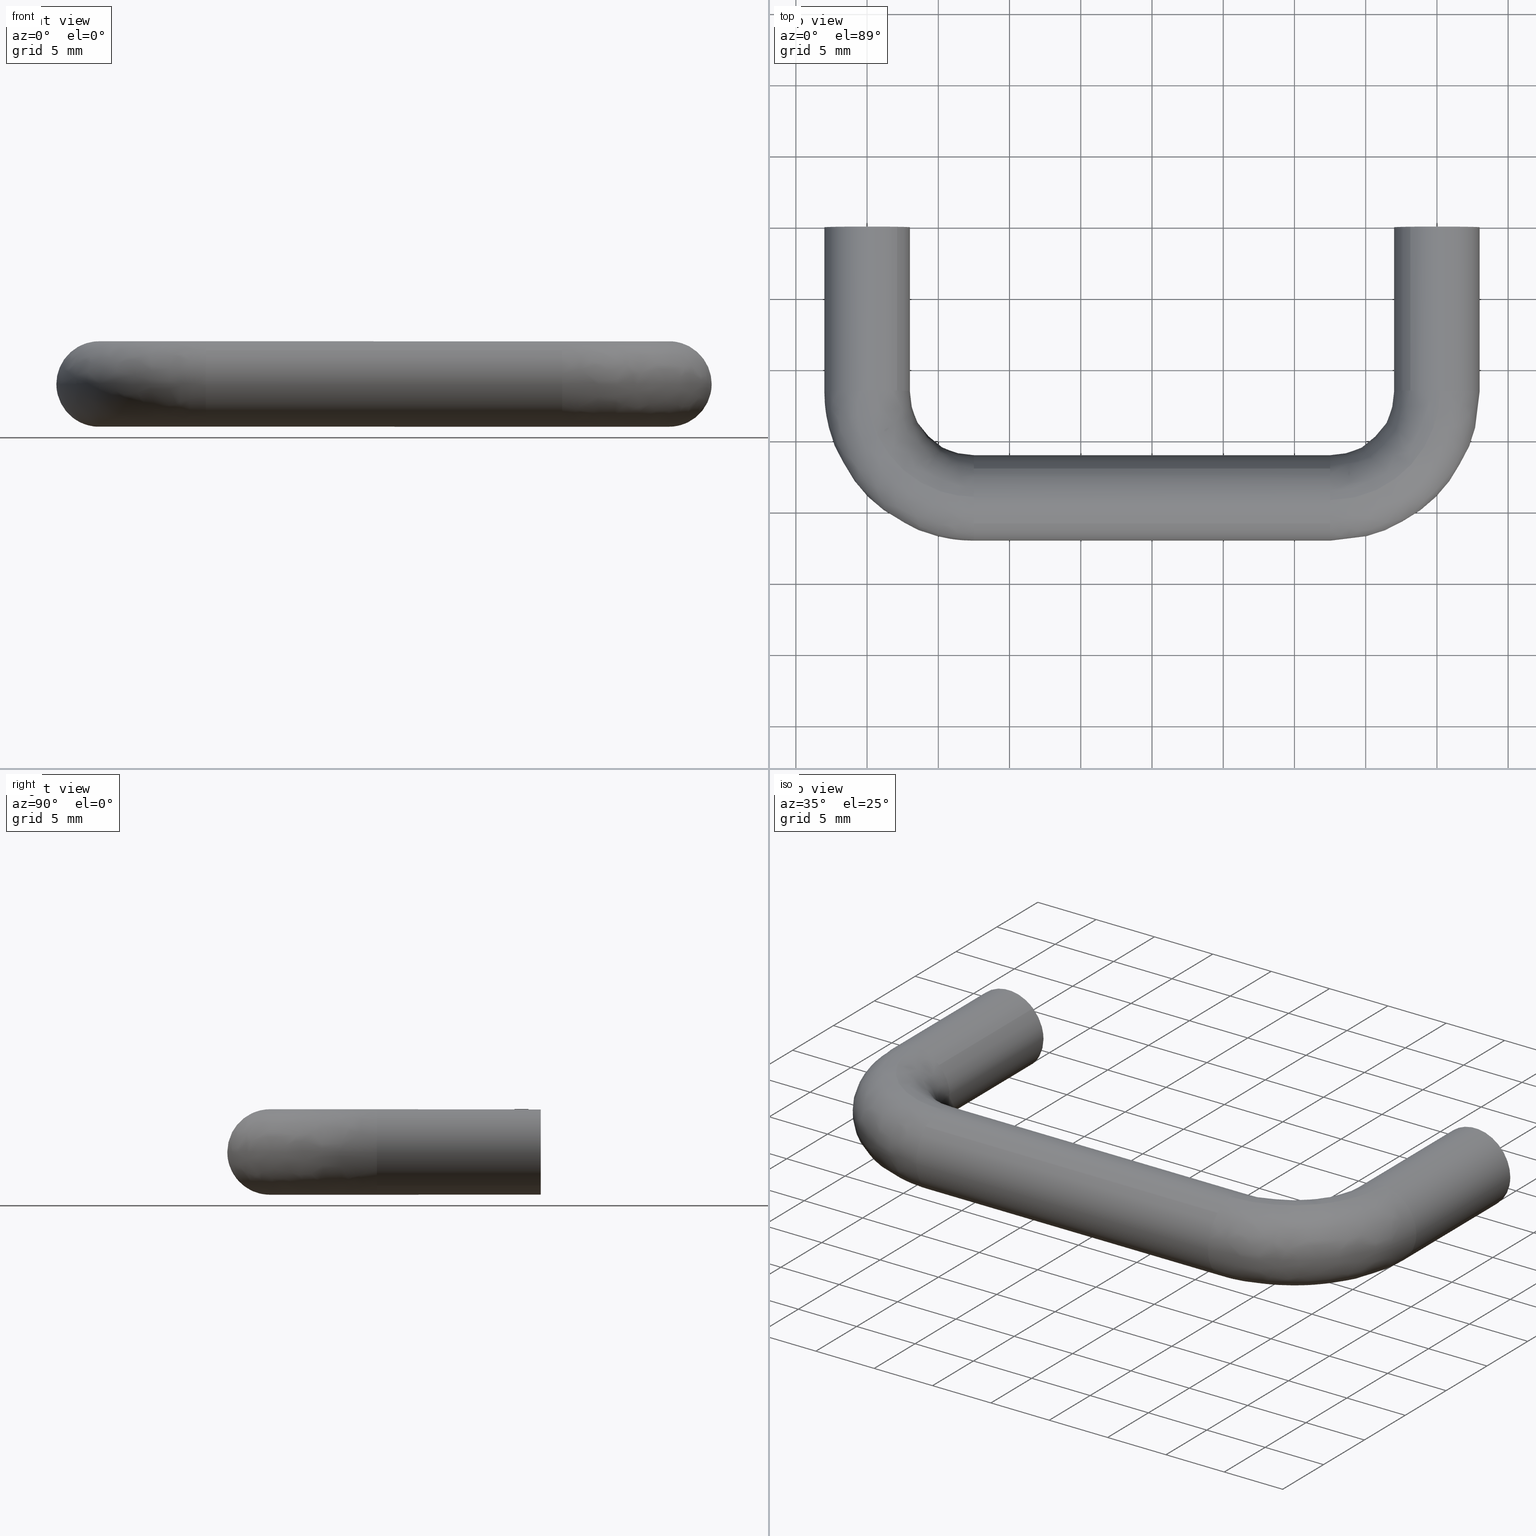
[diagram: canonical four-view strip — front | top / right | iso, engineering-drawing reading convention]
A machine part, canonical four-view strip (front | top / right | iso — engineering-drawing reading convention). The complete STEP part file that produces these views, byte-faithful:
ISO-10303-21;
HEADER;
/****************************************************************
 * Generated by software with PDE/Lib inside                    *
 * PDElib Version 4.4.1-0003, patched  Thursday August 19 11:58 *
 * International Technegroup Inc. (www.iti-oh.com)              *
 ****************************************************************/
FILE_DESCRIPTION((''),'2;1');
FILE_NAME('','2005-10-07T12:40:44',(''),(''),'','CADfix','');
FILE_SCHEMA(('AUTOMOTIVE_DESIGN'));
ENDSEC;
DATA;
#5=APPLICATION_CONTEXT('automotive design');
#6=APPLICATION_PROTOCOL_DEFINITION('Draft International Standard','automotive_design',1998,#5);
#7=PRODUCT_CONTEXT('None',#5,'mechanical');
#8=PRODUCT('pull','','None',(#7));
#9=PRODUCT_RELATED_PRODUCT_CATEGORY('part','description',(#8));
#10=PRODUCT_DEFINITION_FORMATION('None','None',#8);
#11=PRODUCT_DEFINITION_CONTEXT('part definition',#5,'design');
#12=PRODUCT_DEFINITION('None','None',#10,#11);
#18=(NAMED_UNIT(*)PLANE_ANGLE_UNIT()SI_UNIT($,.RADIAN.));
#19=DIMENSIONAL_EXPONENTS(0.0,0.0,0.0,0.0,0.0,0.0,0.0);
#20=PLANE_ANGLE_MEASURE_WITH_UNIT(PLANE_ANGLE_MEASURE(0.017453292500000),#18);
#24=(CONVERSION_BASED_UNIT('DEGREE',#20)NAMED_UNIT(#19)PLANE_ANGLE_UNIT());
#28=(NAMED_UNIT(*)SI_UNIT($,.STERADIAN.)SOLID_ANGLE_UNIT());
#32=(LENGTH_UNIT()NAMED_UNIT(*)SI_UNIT(.MILLI.,.METRE.));
#34=UNCERTAINTY_MEASURE_WITH_UNIT(LENGTH_MEASURE(0.001000000000000),#32,'DISTANCE_ACCURACY_VALUE','');
#36=(GEOMETRIC_REPRESENTATION_CONTEXT(3)GLOBAL_UNCERTAINTY_ASSIGNED_CONTEXT((#34))GLOBAL_UNIT_ASSIGNED_CONTEXT((#24,#28,#32))REPRESENTATION_CONTEXT('None','None'));
#37=AXIS2_PLACEMENT_3D('',#38,#39,#40);
#38=CARTESIAN_POINT('',(0.0,0.0,0.0));
#39=DIRECTION('',(0.0,0.0,1.0));
#40=DIRECTION('',(1.0,0.0,0.0));
#41=ADVANCED_BREP_SHAPE_REPRESENTATION('',(#37,#1347),#36);
#42=PRODUCT_DEFINITION_SHAPE('','',#12);
#43=SHAPE_DEFINITION_REPRESENTATION(#42,#41);
#44=CARTESIAN_POINT('',(38.006165332533747,-8.199999999999999,0.156918191455691));
#45=CARTESIAN_POINT('',(38.163083523989442,-8.199999999999999,2.150752858921946));
#46=CARTESIAN_POINT('',(40.156918191455688,-8.199999999999999,1.993834667466255));
#47=CARTESIAN_POINT('',(42.150752858921940,-8.199999999999999,1.836916476010564));
#48=CARTESIAN_POINT('',(41.993834667466253,-8.199999999999999,-0.156918191455691));
#49=CARTESIAN_POINT('',(38.006165332533747,0.205000000000000,0.156918191455691));
#50=CARTESIAN_POINT('',(38.163083523989442,0.205000000000000,2.150752858921946));
#51=CARTESIAN_POINT('',(40.156918191455688,0.205000000000000,1.993834667466255));
#52=CARTESIAN_POINT('',(42.150752858921940,0.205000000000000,1.836916476010564));
#53=CARTESIAN_POINT('',(41.993834667466253,0.205000000000000,-0.156918191455691));
#61=(BOUNDED_SURFACE()B_SPLINE_SURFACE(2,1,((#44,#49),(#45,#50),(#46,#51),(#47,#52),(#48,#53)),.UNSPECIFIED.,.F.,.F.,.U.)B_SPLINE_SURFACE_WITH_KNOTS((3,2,3),(2,2),(0.0,3.313708498984760,6.627416997969521),(0.0,8.404999999999999),.UNSPECIFIED.)GEOMETRIC_REPRESENTATION_ITEM()RATIONAL_B_SPLINE_SURFACE(((1.0,1.0),(0.707106781186548,0.707106781186548),(1.0,1.0),(0.707106781186548,0.707106781186548),(1.0,1.0)))REPRESENTATION_ITEM('')SURFACE());
#62=CARTESIAN_POINT('',(40.0,-8.0,2.0));
#63=VERTEX_POINT('',#62);
#64=CARTESIAN_POINT('',(38.006165332542729,-8.0,0.156918191569840));
#65=VERTEX_POINT('',#64);
#66=CARTESIAN_POINT('',(40.0,-8.0,2.0));
#67=CARTESIAN_POINT('',(38.151219016895936,-8.0,2.0));
#68=CARTESIAN_POINT('',(38.006165332542729,-8.0,0.156918191569840));
#76=(BOUNDED_CURVE()B_SPLINE_CURVE(2,(#66,#67,#68),.UNSPECIFIED.,.F.,.U.)B_SPLINE_CURVE_WITH_KNOTS((3,3),(0.0,0.236331300613138),.UNSPECIFIED.)CURVE()GEOMETRIC_REPRESENTATION_ITEM()RATIONAL_B_SPLINE_CURVE((1.0,0.723120658628193,0.969723356130852))REPRESENTATION_ITEM(''));
#77=EDGE_CURVE('',#63,#65,#76,.T.);
#78=ORIENTED_EDGE('',*,*,#77,.T.);
#79=CARTESIAN_POINT('',(38.006165332542729,-4.163336E-017,0.156918191569840));
#80=VERTEX_POINT('',#79);
#81=CARTESIAN_POINT('',(38.006165332542729,-8.0,0.156918191569840));
#82=CARTESIAN_POINT('',(38.006165332542729,-4.163336E-017,0.156918191569840));
#83=QUASI_UNIFORM_CURVE('',1,(#81,#82),.UNSPECIFIED.,.F.,.U.);
#84=EDGE_CURVE('',#65,#80,#83,.T.);
#85=ORIENTED_EDGE('',*,*,#84,.T.);
#86=CARTESIAN_POINT('',(40.0,0.0,2.0));
#87=VERTEX_POINT('',#86);
#88=CARTESIAN_POINT('',(40.0,0.0,2.0));
#89=CARTESIAN_POINT('',(38.151219016895929,0.0,2.000000000000000));
#90=CARTESIAN_POINT('',(38.006165332542729,-4.163336E-017,0.156918191569841));
#98=(BOUNDED_CURVE()B_SPLINE_CURVE(2,(#88,#89,#90),.UNSPECIFIED.,.F.,.U.)B_SPLINE_CURVE_WITH_KNOTS((3,3),(0.0,0.236331300613138),.UNSPECIFIED.)CURVE()GEOMETRIC_REPRESENTATION_ITEM()RATIONAL_B_SPLINE_CURVE((1.0,0.723120658628193,0.969723356130852))REPRESENTATION_ITEM(''));
#99=EDGE_CURVE('',#87,#80,#98,.T.);
#100=ORIENTED_EDGE('',*,*,#99,.F.);
#101=CARTESIAN_POINT('',(41.993834667457271,-4.163336E-017,-0.156918191569840));
#102=VERTEX_POINT('',#101);
#103=CARTESIAN_POINT('',(41.993834667457278,-4.163336E-017,-0.156918191569840));
#104=CARTESIAN_POINT('',(42.0,0.0,-0.078580214130019));
#105=CARTESIAN_POINT('',(42.0,0.0,0.0));
#106=CARTESIAN_POINT('',(42.000000000000007,0.0,2.000000000000000));
#107=CARTESIAN_POINT('',(40.0,0.0,2.0));
#115=(BOUNDED_CURVE()B_SPLINE_CURVE(2,(#103,#104,#105,#106,#107),.UNSPECIFIED.,.F.,.U.)B_SPLINE_CURVE_WITH_KNOTS((3,2,3),(0.736331300613138,0.750000000000000,1.0),.UNSPECIFIED.)CURVE()GEOMETRIC_REPRESENTATION_ITEM()RATIONAL_B_SPLINE_CURVE((0.969723356130852,0.983986122558354,1.0,0.707106781186548,1.0))REPRESENTATION_ITEM(''));
#116=EDGE_CURVE('',#102,#87,#115,.T.);
#117=ORIENTED_EDGE('',*,*,#116,.F.);
#118=CARTESIAN_POINT('',(41.993834667457271,-8.0,-0.156918191569839));
#119=VERTEX_POINT('',#118);
#120=CARTESIAN_POINT('',(41.993834667457271,-8.0,-0.156918191569839));
#121=CARTESIAN_POINT('',(41.993834667457271,-4.163336E-017,-0.156918191569840));
#122=QUASI_UNIFORM_CURVE('',1,(#120,#121),.UNSPECIFIED.,.F.,.U.);
#123=EDGE_CURVE('',#119,#102,#122,.T.);
#124=ORIENTED_EDGE('',*,*,#123,.F.);
#125=CARTESIAN_POINT('',(41.993834667457271,-8.0,-0.156918191569839));
#126=CARTESIAN_POINT('',(42.000000000000007,-8.0,-0.078580214130018));
#127=CARTESIAN_POINT('',(42.0,-8.0,0.0));
#128=CARTESIAN_POINT('',(42.000000000000007,-8.0,2.000000000000000));
#129=CARTESIAN_POINT('',(40.0,-8.0,2.0));
#137=(BOUNDED_CURVE()B_SPLINE_CURVE(2,(#125,#126,#127,#128,#129),.UNSPECIFIED.,.F.,.U.)B_SPLINE_CURVE_WITH_KNOTS((3,2,3),(0.736331300613138,0.750000000000000,1.0),.UNSPECIFIED.)CURVE()GEOMETRIC_REPRESENTATION_ITEM()RATIONAL_B_SPLINE_CURVE((0.969723356130852,0.983986122558355,1.0,0.707106781186548,1.0))REPRESENTATION_ITEM(''));
#138=EDGE_CURVE('',#119,#63,#137,.T.);
#139=ORIENTED_EDGE('',*,*,#138,.T.);
#140=EDGE_LOOP('',(#78,#85,#100,#117,#124,#139));
#141=FACE_OUTER_BOUND('',#140,.T.);
#142=ADVANCED_FACE('',(#141),#61,.F.);
#143=CARTESIAN_POINT('',(41.993834667466253,-8.199999999999999,-0.156918191455691));
#144=CARTESIAN_POINT('',(41.836916476010565,-8.199999999999999,-2.150752858921946));
#145=CARTESIAN_POINT('',(39.843081808544312,-8.199999999999999,-1.993834667466255));
#146=CARTESIAN_POINT('',(37.849247141078052,-8.199999999999999,-1.836916476010564));
#147=CARTESIAN_POINT('',(38.006165332533747,-8.199999999999999,0.156918191455691));
#148=CARTESIAN_POINT('',(41.993834667466253,0.205000000000000,-0.156918191455691));
#149=CARTESIAN_POINT('',(41.836916476010565,0.205000000000000,-2.150752858921946));
#150=CARTESIAN_POINT('',(39.843081808544312,0.205000000000000,-1.993834667466255));
#151=CARTESIAN_POINT('',(37.849247141078052,0.205000000000000,-1.836916476010564));
#152=CARTESIAN_POINT('',(38.006165332533747,0.205000000000000,0.156918191455691));
#160=(BOUNDED_SURFACE()B_SPLINE_SURFACE(2,1,((#143,#148),(#144,#149),(#145,#150),(#146,#151),(#147,#152)),.UNSPECIFIED.,.F.,.F.,.U.)B_SPLINE_SURFACE_WITH_KNOTS((3,2,3),(2,2),(0.0,3.313708498984755,6.627416997969509),(0.0,8.404999999999999),.UNSPECIFIED.)GEOMETRIC_REPRESENTATION_ITEM()RATIONAL_B_SPLINE_SURFACE(((1.0,1.0),(0.707106781186548,0.707106781186548),(1.0,1.0),(0.707106781186548,0.707106781186548),(1.0,1.0)))REPRESENTATION_ITEM('')SURFACE());
#161=CARTESIAN_POINT('',(40.0,-8.0,-2.0));
#162=VERTEX_POINT('',#161);
#163=CARTESIAN_POINT('',(38.006165332542729,-8.0,0.156918191569840));
#164=CARTESIAN_POINT('',(38.0,-8.0,0.078580214130019));
#165=CARTESIAN_POINT('',(38.0,-8.0,0.0));
#166=CARTESIAN_POINT('',(38.0,-8.0,-2.000000000000000));
#167=CARTESIAN_POINT('',(40.0,-8.0,-2.0));
#175=(BOUNDED_CURVE()B_SPLINE_CURVE(2,(#163,#164,#165,#166,#167),.UNSPECIFIED.,.F.,.U.)B_SPLINE_CURVE_WITH_KNOTS((3,2,3),(0.236331300613138,0.250000000000000,0.500000000000000),.UNSPECIFIED.)CURVE()GEOMETRIC_REPRESENTATION_ITEM()RATIONAL_B_SPLINE_CURVE((0.969723356130852,0.983986122558354,1.0,0.707106781186548,1.0))REPRESENTATION_ITEM(''));
#176=EDGE_CURVE('',#65,#162,#175,.T.);
#177=ORIENTED_EDGE('',*,*,#176,.T.);
#178=CARTESIAN_POINT('',(40.0,-8.0,-2.0));
#179=CARTESIAN_POINT('',(41.848780983104092,-8.0,-2.000000000000000));
#180=CARTESIAN_POINT('',(41.993834667457271,-8.0,-0.156918191569839));
#188=(BOUNDED_CURVE()B_SPLINE_CURVE(2,(#178,#179,#180),.UNSPECIFIED.,.F.,.U.)B_SPLINE_CURVE_WITH_KNOTS((3,3),(0.500000000000000,0.736331300613140),.UNSPECIFIED.)CURVE()GEOMETRIC_REPRESENTATION_ITEM()RATIONAL_B_SPLINE_CURVE((1.0,0.723120658628192,0.969723356130855))REPRESENTATION_ITEM(''));
#189=EDGE_CURVE('',#162,#119,#188,.T.);
#190=ORIENTED_EDGE('',*,*,#189,.T.);
#191=ORIENTED_EDGE('',*,*,#123,.T.);
#192=CARTESIAN_POINT('',(40.0,0.0,-2.0));
#193=VERTEX_POINT('',#192);
#194=CARTESIAN_POINT('',(40.0,0.0,-2.0));
#195=CARTESIAN_POINT('',(41.848780983104056,0.0,-1.999999999999999));
#196=CARTESIAN_POINT('',(41.993834667457271,-4.163336E-017,-0.156918191569840));
#204=(BOUNDED_CURVE()B_SPLINE_CURVE(2,(#194,#195,#196),.UNSPECIFIED.,.F.,.U.)B_SPLINE_CURVE_WITH_KNOTS((3,3),(0.500000000000000,0.736331300613137),.UNSPECIFIED.)CURVE()GEOMETRIC_REPRESENTATION_ITEM()RATIONAL_B_SPLINE_CURVE((1.0,0.723120658628194,0.969723356130850))REPRESENTATION_ITEM(''));
#205=EDGE_CURVE('',#193,#102,#204,.T.);
#206=ORIENTED_EDGE('',*,*,#205,.F.);
#207=CARTESIAN_POINT('',(38.006165332542736,-4.163336E-017,0.156918191569840));
#208=CARTESIAN_POINT('',(38.000000000000007,0.0,0.078580214130019));
#209=CARTESIAN_POINT('',(38.0,0.0,0.0));
#210=CARTESIAN_POINT('',(38.0,0.0,-2.000000000000000));
#211=CARTESIAN_POINT('',(40.0,0.0,-2.0));
#219=(BOUNDED_CURVE()B_SPLINE_CURVE(2,(#207,#208,#209,#210,#211),.UNSPECIFIED.,.F.,.U.)B_SPLINE_CURVE_WITH_KNOTS((3,2,3),(0.236331300613138,0.250000000000000,0.500000000000000),.UNSPECIFIED.)CURVE()GEOMETRIC_REPRESENTATION_ITEM()RATIONAL_B_SPLINE_CURVE((0.969723356130852,0.983986122558354,1.0,0.707106781186548,1.0))REPRESENTATION_ITEM(''));
#220=EDGE_CURVE('',#80,#193,#219,.T.);
#221=ORIENTED_EDGE('',*,*,#220,.F.);
#222=ORIENTED_EDGE('',*,*,#84,.F.);
#223=EDGE_LOOP('',(#177,#190,#191,#206,#221,#222));
#224=FACE_OUTER_BOUND('',#223,.T.);
#225=ADVANCED_FACE('',(#224),#160,.F.);
#226=CARTESIAN_POINT('',(-1.993834667466255,-8.199999999999999,0.156918191455691));
#227=CARTESIAN_POINT('',(-1.836916476010564,-8.199999999999999,2.150752858921946));
#228=CARTESIAN_POINT('',(0.156918191455691,-8.199999999999999,1.993834667466255));
#229=CARTESIAN_POINT('',(2.150752858921946,-8.199999999999999,1.836916476010564));
#230=CARTESIAN_POINT('',(1.993834667466255,-8.199999999999999,-0.156918191455691));
#231=CARTESIAN_POINT('',(-1.993834667466255,0.205000000000000,0.156918191455691));
#232=CARTESIAN_POINT('',(-1.836916476010564,0.205000000000000,2.150752858921946));
#233=CARTESIAN_POINT('',(0.156918191455691,0.205000000000000,1.993834667466255));
#234=CARTESIAN_POINT('',(2.150752858921946,0.205000000000000,1.836916476010564));
#235=CARTESIAN_POINT('',(1.993834667466255,0.205000000000000,-0.156918191455691));
#243=(BOUNDED_SURFACE()B_SPLINE_SURFACE(2,1,((#226,#231),(#227,#232),(#228,#233),(#229,#234),(#230,#235)),.UNSPECIFIED.,.F.,.F.,.U.)B_SPLINE_SURFACE_WITH_KNOTS((3,2,3),(2,2),(0.0,3.313708498984759,6.627416997969518),(0.0,8.404999999999999),.UNSPECIFIED.)GEOMETRIC_REPRESENTATION_ITEM()RATIONAL_B_SPLINE_SURFACE(((1.0,1.0),(0.707106781186548,0.707106781186548),(1.0,1.0),(0.707106781186548,0.707106781186548),(1.0,1.0)))REPRESENTATION_ITEM('')SURFACE());
#244=CARTESIAN_POINT('',(0.0,-8.0,2.0));
#245=VERTEX_POINT('',#244);
#246=CARTESIAN_POINT('',(-1.993834667457272,-8.0,0.156918191569840));
#247=VERTEX_POINT('',#246);
#248=CARTESIAN_POINT('',(0.0,-8.0,2.0));
#249=CARTESIAN_POINT('',(-1.848780983104070,-8.0,2.0));
#250=CARTESIAN_POINT('',(-1.993834667457272,-8.0,0.156918191569840));
#258=(BOUNDED_CURVE()B_SPLINE_CURVE(2,(#248,#249,#250),.UNSPECIFIED.,.F.,.U.)B_SPLINE_CURVE_WITH_KNOTS((3,3),(0.0,0.236331300613138),.UNSPECIFIED.)CURVE()GEOMETRIC_REPRESENTATION_ITEM()RATIONAL_B_SPLINE_CURVE((1.0,0.723120658628193,0.969723356130852))REPRESENTATION_ITEM(''));
#259=EDGE_CURVE('',#245,#247,#258,.T.);
#260=ORIENTED_EDGE('',*,*,#259,.T.);
#261=CARTESIAN_POINT('',(-1.993834667457272,-4.163336E-017,0.156918191569840));
#262=VERTEX_POINT('',#261);
#263=CARTESIAN_POINT('',(-1.993834667457272,-8.0,0.156918191569840));
#264=CARTESIAN_POINT('',(-1.993834667457272,-4.163336E-017,0.156918191569840));
#265=QUASI_UNIFORM_CURVE('',1,(#263,#264),.UNSPECIFIED.,.F.,.U.);
#266=EDGE_CURVE('',#247,#262,#265,.T.);
#267=ORIENTED_EDGE('',*,*,#266,.T.);
#268=CARTESIAN_POINT('',(0.0,0.0,2.0));
#269=VERTEX_POINT('',#268);
#270=CARTESIAN_POINT('',(0.0,0.0,2.0));
#271=CARTESIAN_POINT('',(-1.848780983104070,0.0,2.0));
#272=CARTESIAN_POINT('',(-1.993834667457272,-4.163336E-017,0.156918191569840));
#280=(BOUNDED_CURVE()B_SPLINE_CURVE(2,(#270,#271,#272),.UNSPECIFIED.,.F.,.U.)B_SPLINE_CURVE_WITH_KNOTS((3,3),(0.0,0.236331300613138),.UNSPECIFIED.)CURVE()GEOMETRIC_REPRESENTATION_ITEM()RATIONAL_B_SPLINE_CURVE((1.0,0.723120658628193,0.969723356130852))REPRESENTATION_ITEM(''));
#281=EDGE_CURVE('',#269,#262,#280,.T.);
#282=ORIENTED_EDGE('',*,*,#281,.F.);
#283=CARTESIAN_POINT('',(1.993834667457272,-4.163336E-017,-0.156918191569840));
#284=VERTEX_POINT('',#283);
#285=CARTESIAN_POINT('',(1.993834667457272,-4.163336E-017,-0.156918191569840));
#286=CARTESIAN_POINT('',(2.0,0.0,-0.078580214130019));
#287=CARTESIAN_POINT('',(2.0,0.0,0.0));
#288=CARTESIAN_POINT('',(2.000000000000000,0.0,2.000000000000000));
#289=CARTESIAN_POINT('',(0.0,0.0,2.0));
#297=(BOUNDED_CURVE()B_SPLINE_CURVE(2,(#285,#286,#287,#288,#289),.UNSPECIFIED.,.F.,.U.)B_SPLINE_CURVE_WITH_KNOTS((3,2,3),(0.736331300613138,0.750000000000000,1.0),.UNSPECIFIED.)CURVE()GEOMETRIC_REPRESENTATION_ITEM()RATIONAL_B_SPLINE_CURVE((0.969723356130852,0.983986122558354,1.0,0.707106781186548,1.0))REPRESENTATION_ITEM(''));
#298=EDGE_CURVE('',#284,#269,#297,.T.);
#299=ORIENTED_EDGE('',*,*,#298,.F.);
#300=CARTESIAN_POINT('',(1.993834667457272,-8.0,-0.156918191569840));
#301=VERTEX_POINT('',#300);
#302=CARTESIAN_POINT('',(1.993834667457272,-8.0,-0.156918191569840));
#303=CARTESIAN_POINT('',(1.993834667457272,-4.163336E-017,-0.156918191569840));
#304=QUASI_UNIFORM_CURVE('',1,(#302,#303),.UNSPECIFIED.,.F.,.U.);
#305=EDGE_CURVE('',#301,#284,#304,.T.);
#306=ORIENTED_EDGE('',*,*,#305,.F.);
#307=CARTESIAN_POINT('',(1.993834667457272,-8.0,-0.156918191569840));
#308=CARTESIAN_POINT('',(2.0,-8.0,-0.078580214130019));
#309=CARTESIAN_POINT('',(2.0,-8.0,0.0));
#310=CARTESIAN_POINT('',(2.000000000000000,-8.0,2.000000000000000));
#311=CARTESIAN_POINT('',(0.0,-8.0,2.0));
#319=(BOUNDED_CURVE()B_SPLINE_CURVE(2,(#307,#308,#309,#310,#311),.UNSPECIFIED.,.F.,.U.)B_SPLINE_CURVE_WITH_KNOTS((3,2,3),(0.736331300613138,0.750000000000000,1.0),.UNSPECIFIED.)CURVE()GEOMETRIC_REPRESENTATION_ITEM()RATIONAL_B_SPLINE_CURVE((0.969723356130852,0.983986122558354,1.0,0.707106781186548,1.0))REPRESENTATION_ITEM(''));
#320=EDGE_CURVE('',#301,#245,#319,.T.);
#321=ORIENTED_EDGE('',*,*,#320,.T.);
#322=EDGE_LOOP('',(#260,#267,#282,#299,#306,#321));
#323=FACE_OUTER_BOUND('',#322,.T.);
#324=ADVANCED_FACE('',(#323),#243,.F.);
#325=CARTESIAN_POINT('',(1.993834667466255,-8.199999999999999,-0.156918191455691));
#326=CARTESIAN_POINT('',(1.836916476010564,-8.199999999999999,-2.150752858921946));
#327=CARTESIAN_POINT('',(-0.156918191455691,-8.199999999999999,-1.993834667466255));
#328=CARTESIAN_POINT('',(-2.150752858921946,-8.199999999999999,-1.836916476010564));
#329=CARTESIAN_POINT('',(-1.993834667466255,-8.199999999999999,0.156918191455691));
#330=CARTESIAN_POINT('',(1.993834667466255,0.205000000000000,-0.156918191455691));
#331=CARTESIAN_POINT('',(1.836916476010564,0.205000000000000,-2.150752858921946));
#332=CARTESIAN_POINT('',(-0.156918191455691,0.205000000000000,-1.993834667466255));
#333=CARTESIAN_POINT('',(-2.150752858921946,0.205000000000000,-1.836916476010564));
#334=CARTESIAN_POINT('',(-1.993834667466255,0.205000000000000,0.156918191455691));
#342=(BOUNDED_SURFACE()B_SPLINE_SURFACE(2,1,((#325,#330),(#326,#331),(#327,#332),(#328,#333),(#329,#334)),.UNSPECIFIED.,.F.,.F.,.U.)B_SPLINE_SURFACE_WITH_KNOTS((3,2,3),(2,2),(0.0,3.313708498984759,6.627416997969518),(0.0,8.404999999999999),.UNSPECIFIED.)GEOMETRIC_REPRESENTATION_ITEM()RATIONAL_B_SPLINE_SURFACE(((1.0,1.0),(0.707106781186548,0.707106781186548),(1.0,1.0),(0.707106781186548,0.707106781186548),(1.0,1.0)))REPRESENTATION_ITEM('')SURFACE());
#343=CARTESIAN_POINT('',(0.0,-8.0,-2.0));
#344=VERTEX_POINT('',#343);
#345=CARTESIAN_POINT('',(-1.993834667457272,-8.0,0.156918191569840));
#346=CARTESIAN_POINT('',(-2.0,-8.0,0.078580214130019));
#347=CARTESIAN_POINT('',(-2.0,-8.0,0.0));
#348=CARTESIAN_POINT('',(-2.000000000000000,-8.0,-2.000000000000000));
#349=CARTESIAN_POINT('',(0.0,-8.0,-2.0));
#357=(BOUNDED_CURVE()B_SPLINE_CURVE(2,(#345,#346,#347,#348,#349),.UNSPECIFIED.,.F.,.U.)B_SPLINE_CURVE_WITH_KNOTS((3,2,3),(0.236331300613138,0.250000000000000,0.500000000000000),.UNSPECIFIED.)CURVE()GEOMETRIC_REPRESENTATION_ITEM()RATIONAL_B_SPLINE_CURVE((0.969723356130852,0.983986122558354,1.0,0.707106781186548,1.0))REPRESENTATION_ITEM(''));
#358=EDGE_CURVE('',#247,#344,#357,.T.);
#359=ORIENTED_EDGE('',*,*,#358,.T.);
#360=CARTESIAN_POINT('',(0.0,-8.0,-2.0));
#361=CARTESIAN_POINT('',(1.848780983104059,-8.000000000000002,-1.999999999999999));
#362=CARTESIAN_POINT('',(1.993834667457272,-8.0,-0.156918191569840));
#370=(BOUNDED_CURVE()B_SPLINE_CURVE(2,(#360,#361,#362),.UNSPECIFIED.,.F.,.U.)B_SPLINE_CURVE_WITH_KNOTS((3,3),(0.500000000000000,0.736331300613137),.UNSPECIFIED.)CURVE()GEOMETRIC_REPRESENTATION_ITEM()RATIONAL_B_SPLINE_CURVE((1.0,0.723120658628194,0.969723356130850))REPRESENTATION_ITEM(''));
#371=EDGE_CURVE('',#344,#301,#370,.T.);
#372=ORIENTED_EDGE('',*,*,#371,.T.);
#373=ORIENTED_EDGE('',*,*,#305,.T.);
#374=CARTESIAN_POINT('',(0.0,0.0,-2.0));
#375=VERTEX_POINT('',#374);
#376=CARTESIAN_POINT('',(0.0,0.0,-2.0));
#377=CARTESIAN_POINT('',(1.848780983104059,0.0,-1.999999999999999));
#378=CARTESIAN_POINT('',(1.993834667457272,-4.163336E-017,-0.156918191569840));
#386=(BOUNDED_CURVE()B_SPLINE_CURVE(2,(#376,#377,#378),.UNSPECIFIED.,.F.,.U.)B_SPLINE_CURVE_WITH_KNOTS((3,3),(0.500000000000000,0.736331300613137),.UNSPECIFIED.)CURVE()GEOMETRIC_REPRESENTATION_ITEM()RATIONAL_B_SPLINE_CURVE((1.0,0.723120658628194,0.969723356130850))REPRESENTATION_ITEM(''));
#387=EDGE_CURVE('',#375,#284,#386,.T.);
#388=ORIENTED_EDGE('',*,*,#387,.F.);
#389=CARTESIAN_POINT('',(-1.993834667457272,-4.163336E-017,0.156918191569840));
#390=CARTESIAN_POINT('',(-2.0,0.0,0.078580214130019));
#391=CARTESIAN_POINT('',(-2.0,0.0,0.0));
#392=CARTESIAN_POINT('',(-2.000000000000000,0.0,-2.000000000000000));
#393=CARTESIAN_POINT('',(0.0,0.0,-2.0));
#401=(BOUNDED_CURVE()B_SPLINE_CURVE(2,(#389,#390,#391,#392,#393),.UNSPECIFIED.,.F.,.U.)B_SPLINE_CURVE_WITH_KNOTS((3,2,3),(0.236331300613138,0.250000000000000,0.500000000000000),.UNSPECIFIED.)CURVE()GEOMETRIC_REPRESENTATION_ITEM()RATIONAL_B_SPLINE_CURVE((0.969723356130852,0.983986122558354,1.0,0.707106781186548,1.0))REPRESENTATION_ITEM(''));
#402=EDGE_CURVE('',#262,#375,#401,.T.);
#403=ORIENTED_EDGE('',*,*,#402,.F.);
#404=ORIENTED_EDGE('',*,*,#266,.F.);
#405=EDGE_LOOP('',(#359,#372,#373,#388,#403,#404));
#406=FACE_OUTER_BOUND('',#405,.T.);
#407=ADVANCED_FACE('',(#406),#342,.F.);
#408=CARTESIAN_POINT('',(41.867543909912847,-11.787500000253811,-2.347824470557242));
#409=CARTESIAN_POINT('',(39.519719439355612,-11.787500000253816,-4.215368380470099));
#410=CARTESIAN_POINT('',(37.652175529442758,-11.787500000253811,-1.867543909912858));
#411=CARTESIAN_POINT('',(35.784631619529897,-11.787500000253816,0.480280560644384));
#412=CARTESIAN_POINT('',(38.132456090087153,-11.787500000253811,2.347824470557242));
#413=CARTESIAN_POINT('',(41.867543909912847,0.294687500006351,-2.347824470557242));
#414=CARTESIAN_POINT('',(39.519719439355612,0.294687500006351,-4.215368380470099));
#415=CARTESIAN_POINT('',(37.652175529442758,0.294687500006351,-1.867543909912858));
#416=CARTESIAN_POINT('',(35.784631619529897,0.294687500006351,0.480280560644384));
#417=CARTESIAN_POINT('',(38.132456090087153,0.294687500006351,2.347824470557242));
#425=(BOUNDED_SURFACE()B_SPLINE_SURFACE(2,1,((#408,#413),(#409,#414),(#410,#415),(#411,#416),(#412,#417)),.UNSPECIFIED.,.F.,.F.,.U.)B_SPLINE_SURFACE_WITH_KNOTS((3,2,3),(2,2),(0.0,4.970562748477141,9.941125496954282),(0.0,12.082187500260170),.UNSPECIFIED.)GEOMETRIC_REPRESENTATION_ITEM()RATIONAL_B_SPLINE_SURFACE(((1.0,1.0),(0.707106781186548,0.707106781186548),(1.0,1.0),(0.707106781186548,0.707106781186548),(1.0,1.0)))REPRESENTATION_ITEM('')SURFACE());
#426=CARTESIAN_POINT('',(39.962301879997071,-11.500000000179689,-2.999763132607013));
#427=VERTEX_POINT('',#426);
#428=CARTESIAN_POINT('',(41.867541848628008,-11.500000000000011,-2.347826110174283));
#429=VERTEX_POINT('',#428);
#430=CARTESIAN_POINT('',(39.962301879997071,-11.500000000179694,-2.999763132607013));
#431=CARTESIAN_POINT('',(39.981150195671418,-11.500000000000002,-3.000000000000000));
#432=CARTESIAN_POINT('',(40.0,-11.500000000000000,-3.0));
#433=CARTESIAN_POINT('',(41.047645422730959,-11.499999999999995,-3.000000000000000));
#434=CARTESIAN_POINT('',(41.867541848628008,-11.500000000000011,-2.347826110174283));
#442=(BOUNDED_CURVE()B_SPLINE_CURVE(2,(#430,#431,#432,#433,#434),.UNSPECIFIED.,.F.,.U.)B_SPLINE_CURVE_WITH_KNOTS((3,2,3),(0.247784295880353,0.250000000000000,0.357863744491165),.UNSPECIFIED.)CURVE()GEOMETRIC_REPRESENTATION_ITEM()RATIONAL_B_SPLINE_CURVE((0.994854295548782,0.997404141153833,1.0,0.873629762730844,0.856305661334393))REPRESENTATION_ITEM(''));
#443=EDGE_CURVE('',#427,#429,#442,.T.);
#444=ORIENTED_EDGE('',*,*,#443,.F.);
#445=CARTESIAN_POINT('',(37.0,-11.500000000000000,0.0));
#446=VERTEX_POINT('',#445);
#447=CARTESIAN_POINT('',(37.0,-11.500000000000000,0.0));
#448=CARTESIAN_POINT('',(37.000000000000007,-11.500000000000000,-2.962535789024903));
#449=CARTESIAN_POINT('',(39.962301879997078,-11.500000000179693,-2.999763132607013));
#457=(BOUNDED_CURVE()B_SPLINE_CURVE(2,(#447,#448,#449),.UNSPECIFIED.,.F.,.U.)B_SPLINE_CURVE_WITH_KNOTS((3,3),(0.0,0.247784295880353),.UNSPECIFIED.)CURVE()GEOMETRIC_REPRESENTATION_ITEM()RATIONAL_B_SPLINE_CURVE((1.0,0.709702640032715,0.994854295548782))REPRESENTATION_ITEM(''));
#458=EDGE_CURVE('',#446,#427,#457,.T.);
#459=ORIENTED_EDGE('',*,*,#458,.F.);
#460=CARTESIAN_POINT('',(38.132458151371978,-11.500000000000011,2.347826110174281));
#461=VERTEX_POINT('',#460);
#462=CARTESIAN_POINT('',(38.132458151371978,-11.500000000000014,2.347826110174281));
#463=CARTESIAN_POINT('',(37.000000000000007,-11.500000000000002,1.447029845775194));
#464=CARTESIAN_POINT('',(37.0,-11.500000000000000,0.0));
#472=(BOUNDED_CURVE()B_SPLINE_CURVE(2,(#462,#463,#464),.UNSPECIFIED.,.F.,.U.)B_SPLINE_CURVE_WITH_KNOTS((3,3),(0.857863744491166,1.0),.UNSPECIFIED.)CURVE()GEOMETRIC_REPRESENTATION_ITEM()RATIONAL_B_SPLINE_CURVE((0.856305661334392,0.833477018455705,1.0))REPRESENTATION_ITEM(''));
#473=EDGE_CURVE('',#461,#446,#472,.T.);
#474=ORIENTED_EDGE('',*,*,#473,.F.);
#475=CARTESIAN_POINT('',(38.132457165461702,6.376843E-015,2.347825325947980));
#476=VERTEX_POINT('',#475);
#477=CARTESIAN_POINT('',(38.132458151371978,-11.500000000000011,2.347826110174281));
#478=CARTESIAN_POINT('',(38.132457165461702,6.376843E-015,2.347825325947980));
#479=QUASI_UNIFORM_CURVE('',1,(#477,#478),.UNSPECIFIED.,.F.,.U.);
#480=EDGE_CURVE('',#461,#476,#479,.T.);
#481=ORIENTED_EDGE('',*,*,#480,.T.);
#482=CARTESIAN_POINT('',(37.0,5.204170E-015,0.0));
#483=VERTEX_POINT('',#482);
#484=CARTESIAN_POINT('',(38.132457165461709,6.376843E-015,2.347825325947980));
#485=CARTESIAN_POINT('',(36.999999999999993,5.204170E-015,1.447029069342029));
#486=CARTESIAN_POINT('',(37.0,5.204170E-015,0.0));
#494=(BOUNDED_CURVE()B_SPLINE_CURVE(2,(#484,#485,#486),.UNSPECIFIED.,.F.,.U.)B_SPLINE_CURVE_WITH_KNOTS((3,3),(0.857863808057201,1.0),.UNSPECIFIED.)CURVE()GEOMETRIC_REPRESENTATION_ITEM()RATIONAL_B_SPLINE_CURVE((0.856305640915624,0.833477092927948,1.0))REPRESENTATION_ITEM(''));
#495=EDGE_CURVE('',#476,#483,#494,.T.);
#496=ORIENTED_EDGE('',*,*,#495,.T.);
#497=CARTESIAN_POINT('',(41.867542834538298,5.100087E-015,-2.347825325947981));
#498=VERTEX_POINT('',#497);
#499=CARTESIAN_POINT('',(37.0,5.204170E-015,0.0));
#500=CARTESIAN_POINT('',(37.0,5.204170E-015,-3.0));
#501=CARTESIAN_POINT('',(40.0,5.204170E-015,-3.0));
#502=CARTESIAN_POINT('',(41.047646129433389,5.204170E-015,-3.000000000000000));
#503=CARTESIAN_POINT('',(41.867542834538305,5.100087E-015,-2.347825325947981));
#511=(BOUNDED_CURVE()B_SPLINE_CURVE(2,(#499,#500,#501,#502,#503),.UNSPECIFIED.,.F.,.U.)B_SPLINE_CURVE_WITH_KNOTS((3,2,3),(0.0,0.250000000000000,0.357863808057202),.UNSPECIFIED.)CURVE()GEOMETRIC_REPRESENTATION_ITEM()RATIONAL_B_SPLINE_CURVE((1.0,0.707106781186548,1.0,0.873629688258599,0.856305640915624))REPRESENTATION_ITEM(''));
#512=EDGE_CURVE('',#483,#498,#511,.T.);
#513=ORIENTED_EDGE('',*,*,#512,.T.);
#514=CARTESIAN_POINT('',(41.867541848628008,-11.500000000000011,-2.347826110174283));
#515=CARTESIAN_POINT('',(41.867542834538298,5.100087E-015,-2.347825325947981));
#516=QUASI_UNIFORM_CURVE('',1,(#514,#515),.UNSPECIFIED.,.F.,.U.);
#517=EDGE_CURVE('',#429,#498,#516,.T.);
#518=ORIENTED_EDGE('',*,*,#517,.F.);
#519=EDGE_LOOP('',(#444,#459,#474,#481,#496,#513,#518));
#520=FACE_OUTER_BOUND('',#519,.T.);
#521=ADVANCED_FACE('',(#520),#425,.T.);
#522=CARTESIAN_POINT('',(38.132456090087153,-11.787500000253811,2.347824470557242));
#523=CARTESIAN_POINT('',(40.480280560644395,-11.787500000253816,4.215368380470099));
#524=CARTESIAN_POINT('',(42.347824470557242,-11.787500000253811,1.867543909912858));
#525=CARTESIAN_POINT('',(44.215368380470096,-11.787500000253816,-0.480280560644384));
#526=CARTESIAN_POINT('',(41.867543909912847,-11.787500000253811,-2.347824470557242));
#527=CARTESIAN_POINT('',(38.132456090087153,0.294687500006351,2.347824470557242));
#528=CARTESIAN_POINT('',(40.480280560644395,0.294687500006351,4.215368380470099));
#529=CARTESIAN_POINT('',(42.347824470557242,0.294687500006351,1.867543909912858));
#530=CARTESIAN_POINT('',(44.215368380470096,0.294687500006351,-0.480280560644384));
#531=CARTESIAN_POINT('',(41.867543909912847,0.294687500006351,-2.347824470557242));
#539=(BOUNDED_SURFACE()B_SPLINE_SURFACE(2,1,((#522,#527),(#523,#528),(#524,#529),(#525,#530),(#526,#531)),.UNSPECIFIED.,.F.,.F.,.U.)B_SPLINE_SURFACE_WITH_KNOTS((3,2,3),(2,2),(0.0,4.970562748477141,9.941125496954282),(0.0,12.082187500260170),.UNSPECIFIED.)GEOMETRIC_REPRESENTATION_ITEM()RATIONAL_B_SPLINE_SURFACE(((1.0,1.0),(0.707106781186548,0.707106781186548),(1.0,1.0),(0.707106781186548,0.707106781186548),(1.0,1.0)))REPRESENTATION_ITEM('')SURFACE());
#540=CARTESIAN_POINT('',(43.0,-11.500000000000000,0.0));
#541=VERTEX_POINT('',#540);
#542=CARTESIAN_POINT('',(41.867541848628008,-11.500000000000011,-2.347826110174282));
#543=CARTESIAN_POINT('',(42.999999999999986,-11.500000000000000,-1.447029845775203));
#544=CARTESIAN_POINT('',(43.0,-11.500000000000000,0.0));
#552=(BOUNDED_CURVE()B_SPLINE_CURVE(2,(#542,#543,#544),.UNSPECIFIED.,.F.,.U.)B_SPLINE_CURVE_WITH_KNOTS((3,3),(0.357863744491165,0.500000000000000),.UNSPECIFIED.)CURVE()GEOMETRIC_REPRESENTATION_ITEM()RATIONAL_B_SPLINE_CURVE((0.856305661334393,0.833477018455704,1.0))REPRESENTATION_ITEM(''));
#553=EDGE_CURVE('',#429,#541,#552,.T.);
#554=ORIENTED_EDGE('',*,*,#553,.F.);
#555=ORIENTED_EDGE('',*,*,#517,.T.);
#556=CARTESIAN_POINT('',(43.0,5.204170E-015,0.0));
#557=VERTEX_POINT('',#556);
#558=CARTESIAN_POINT('',(41.867542834538305,5.100087E-015,-2.347825325947981));
#559=CARTESIAN_POINT('',(43.0,5.204170E-015,-1.447029069342026));
#560=CARTESIAN_POINT('',(43.0,5.204170E-015,0.0));
#568=(BOUNDED_CURVE()B_SPLINE_CURVE(2,(#558,#559,#560),.UNSPECIFIED.,.F.,.U.)B_SPLINE_CURVE_WITH_KNOTS((3,3),(0.357863808057202,0.500000000000000),.UNSPECIFIED.)CURVE()GEOMETRIC_REPRESENTATION_ITEM()RATIONAL_B_SPLINE_CURVE((0.856305640915624,0.833477092927948,1.0))REPRESENTATION_ITEM(''));
#569=EDGE_CURVE('',#498,#557,#568,.T.);
#570=ORIENTED_EDGE('',*,*,#569,.T.);
#571=CARTESIAN_POINT('',(43.0,5.204170E-015,0.0));
#572=CARTESIAN_POINT('',(42.999999999999993,5.204170E-015,3.0));
#573=CARTESIAN_POINT('',(40.0,5.204170E-015,3.0));
#574=CARTESIAN_POINT('',(38.952353870566611,5.204170E-015,3.000000000000000));
#575=CARTESIAN_POINT('',(38.132457165461695,6.376843E-015,2.347825325947980));
#583=(BOUNDED_CURVE()B_SPLINE_CURVE(2,(#571,#572,#573,#574,#575),.UNSPECIFIED.,.F.,.U.)B_SPLINE_CURVE_WITH_KNOTS((3,2,3),(0.500000000000000,0.750000000000000,0.857863808057202),.UNSPECIFIED.)CURVE()GEOMETRIC_REPRESENTATION_ITEM()RATIONAL_B_SPLINE_CURVE((1.0,0.707106781186548,1.0,0.873629688258599,0.856305640915624))REPRESENTATION_ITEM(''));
#584=EDGE_CURVE('',#557,#476,#583,.T.);
#585=ORIENTED_EDGE('',*,*,#584,.T.);
#586=ORIENTED_EDGE('',*,*,#480,.F.);
#587=CARTESIAN_POINT('',(40.209199755762477,-11.500000000247621,2.992697021448866));
#588=VERTEX_POINT('',#587);
#589=CARTESIAN_POINT('',(40.209199755762484,-11.500000000247628,2.992697021448866));
#590=CARTESIAN_POINT('',(40.104727348664092,-11.500000000000000,3.000000000000000));
#591=CARTESIAN_POINT('',(40.0,-11.500000000000000,3.0));
#592=CARTESIAN_POINT('',(38.952354577269027,-11.500000000000002,3.000000000000000));
#593=CARTESIAN_POINT('',(38.132458151371978,-11.500000000000016,2.347826110174282));
#601=(BOUNDED_CURVE()B_SPLINE_CURVE(2,(#589,#590,#591,#592,#593),.UNSPECIFIED.,.F.,.U.)B_SPLINE_CURVE_WITH_KNOTS((3,2,3),(0.737833686416044,0.750000000000000,0.857863744491165),.UNSPECIFIED.)CURVE()GEOMETRIC_REPRESENTATION_ITEM()RATIONAL_B_SPLINE_CURVE((0.972879876135180,0.985746277013205,1.0,0.873629762730843,0.856305661334393))REPRESENTATION_ITEM(''));
#602=EDGE_CURVE('',#588,#461,#601,.T.);
#603=ORIENTED_EDGE('',*,*,#602,.F.);
#604=CARTESIAN_POINT('',(43.0,-11.500000000000000,0.0));
#605=CARTESIAN_POINT('',(43.0,-11.500000000000000,2.797610539857916));
#606=CARTESIAN_POINT('',(40.209199755762491,-11.500000000247622,2.992697021448866));
#614=(BOUNDED_CURVE()B_SPLINE_CURVE(2,(#604,#605,#606),.UNSPECIFIED.,.F.,.U.)B_SPLINE_CURVE_WITH_KNOTS((3,3),(0.500000000000000,0.737833686416045),.UNSPECIFIED.)CURVE()GEOMETRIC_REPRESENTATION_ITEM()RATIONAL_B_SPLINE_CURVE((1.0,0.721360504173342,0.972879876135181))REPRESENTATION_ITEM(''));
#615=EDGE_CURVE('',#541,#588,#614,.T.);
#616=ORIENTED_EDGE('',*,*,#615,.F.);
#617=EDGE_LOOP('',(#554,#555,#570,#585,#586,#603,#616));
#618=FACE_OUTER_BOUND('',#617,.T.);
#619=ADVANCED_FACE('',(#618),#539,.T.);
#620=CARTESIAN_POINT('',(6.874999999837713,-20.824133624861286,2.381708739256423));
#621=CARTESIAN_POINT('',(6.874999999837713,-21.033590119325840,2.221287513856022));
#622=CARTESIAN_POINT('',(6.874999999837713,-21.211832010430371,2.026770622846980));
#623=CARTESIAN_POINT('',(6.874999999837713,-23.238602633277360,-0.185061387583391));
#624=CARTESIAN_POINT('',(6.874999999837713,-21.026770622846978,-2.211832010430372));
#625=CARTESIAN_POINT('',(6.874999999837713,-18.814938612416615,-4.238602633277352));
#626=CARTESIAN_POINT('',(6.874999999837713,-16.788167989569629,-2.026770622846980));
#627=CARTESIAN_POINT('',(6.874999999837713,-14.761397366722647,0.185061387583391));
#628=CARTESIAN_POINT('',(6.874999999837713,-16.973229377153022,2.211832010430372));
#629=CARTESIAN_POINT('',(33.140625000443897,-20.824133624861286,2.381708739256423));
#630=CARTESIAN_POINT('',(33.140625000443897,-21.033590119325829,2.221287513856022));
#631=CARTESIAN_POINT('',(33.140625000443897,-21.211832010430371,2.026770622846980));
#632=CARTESIAN_POINT('',(33.140625000443897,-23.238602633277342,-0.185061387583391));
#633=CARTESIAN_POINT('',(33.140625000443897,-21.026770622846978,-2.211832010430372));
#634=CARTESIAN_POINT('',(33.140625000443897,-18.814938612416601,-4.238602633277352));
#635=CARTESIAN_POINT('',(33.140625000443897,-16.788167989569629,-2.026770622846980));
#636=CARTESIAN_POINT('',(33.140625000443897,-14.761397366722647,0.185061387583391));
#637=CARTESIAN_POINT('',(33.140625000443897,-16.973229377153022,2.211832010430372));
#645=(BOUNDED_SURFACE()B_SPLINE_SURFACE(2,1,((#620,#629),(#621,#630),(#622,#631),(#623,#632),(#624,#633),(#625,#634),(#626,#635),(#627,#636),(#628,#637)),.UNSPECIFIED.,.F.,.F.,.U.)B_SPLINE_SURFACE_WITH_KNOTS((3,2,2,2,3),(2,2),(0.0,0.596467529817257,5.567030278294396,10.537593026771541,15.508155775248680),(0.0,26.265625000606189),.UNSPECIFIED.)GEOMETRIC_REPRESENTATION_ITEM()RATIONAL_B_SPLINE_SURFACE(((0.938140952186599,0.938140952186599),(0.964852813742386,0.964852813742386),(1.0,1.0),(0.707106781186548,0.707106781186548),(1.0,1.0),(0.707106781186548,0.707106781186548),(1.0,1.0),(0.707106781186548,0.707106781186548),(1.0,1.0)))REPRESENTATION_ITEM('')SURFACE());
#646=CARTESIAN_POINT('',(32.500000000000000,-22.0,0.0));
#647=VERTEX_POINT('',#646);
#648=CARTESIAN_POINT('',(32.500000000180812,-20.824133624744910,2.381708739103320));
#649=VERTEX_POINT('',#648);
#650=CARTESIAN_POINT('',(32.500000000000000,-22.0,0.0));
#651=CARTESIAN_POINT('',(32.499999999999993,-22.000000000000004,1.481121123841983));
#652=CARTESIAN_POINT('',(32.500000000180805,-20.824133624744913,2.381708739103320));
#660=(BOUNDED_CURVE()B_SPLINE_CURVE(2,(#650,#651,#652),.UNSPECIFIED.,.F.,.U.)B_SPLINE_CURVE_WITH_KNOTS((3,3),(0.500000000000000,0.644916377192483),.UNSPECIFIED.)CURVE()GEOMETRIC_REPRESENTATION_ITEM()RATIONAL_B_SPLINE_CURVE((1.0,0.830219903301237,0.857271138866268))REPRESENTATION_ITEM(''));
#661=EDGE_CURVE('',#647,#649,#660,.T.);
#662=ORIENTED_EDGE('',*,*,#661,.T.);
#663=CARTESIAN_POINT('',(7.500000000000000,-20.824133624861819,2.381708739256015));
#664=VERTEX_POINT('',#663);
#665=CARTESIAN_POINT('',(7.500000000000000,-20.824133624861819,2.381708739256015));
#666=CARTESIAN_POINT('',(32.500000000180812,-20.824133624744910,2.381708739103320));
#667=QUASI_UNIFORM_CURVE('',1,(#665,#666),.UNSPECIFIED.,.F.,.U.);
#668=EDGE_CURVE('',#664,#649,#667,.T.);
#669=ORIENTED_EDGE('',*,*,#668,.F.);
#670=CARTESIAN_POINT('',(7.500000000000000,-22.0,0.0));
#671=VERTEX_POINT('',#670);
#672=CARTESIAN_POINT('',(7.500000000000000,-22.0,0.0));
#673=CARTESIAN_POINT('',(7.500000000000000,-22.0,1.481121124204090));
#674=CARTESIAN_POINT('',(7.500000000000001,-20.824133624861819,2.381708739256015));
#682=(BOUNDED_CURVE()B_SPLINE_CURVE(2,(#672,#673,#674),.UNSPECIFIED.,.F.,.U.)B_SPLINE_CURVE_WITH_KNOTS((3,3),(0.500000000000000,0.644916377221898),.UNSPECIFIED.)CURVE()GEOMETRIC_REPRESENTATION_ITEM()RATIONAL_B_SPLINE_CURVE((1.0,0.830219903266776,0.857271138877249))REPRESENTATION_ITEM(''));
#683=EDGE_CURVE('',#671,#664,#682,.T.);
#684=ORIENTED_EDGE('',*,*,#683,.F.);
#685=CARTESIAN_POINT('',(7.499999999852138,-19.209199755468461,-2.992697021469419));
#686=VERTEX_POINT('',#685);
#687=CARTESIAN_POINT('',(7.499999999852138,-19.209199755468461,-2.992697021469419));
#688=CARTESIAN_POINT('',(7.499999999999999,-22.0,-2.797610540408957));
#689=CARTESIAN_POINT('',(7.500000000000000,-22.0,0.0));
#697=(BOUNDED_CURVE()B_SPLINE_CURVE(2,(#687,#688,#689),.UNSPECIFIED.,.F.,.U.)B_SPLINE_CURVE_WITH_KNOTS((3,3),(0.262166313550163,0.500000000000000),.UNSPECIFIED.)CURVE()GEOMETRIC_REPRESENTATION_ITEM()RATIONAL_B_SPLINE_CURVE((0.972879876206656,0.721360504133751,1.0))REPRESENTATION_ITEM(''));
#698=EDGE_CURVE('',#686,#671,#697,.T.);
#699=ORIENTED_EDGE('',*,*,#698,.F.);
#700=CARTESIAN_POINT('',(7.500000000000000,-16.0,0.0));
#701=VERTEX_POINT('',#700);
#702=CARTESIAN_POINT('',(7.500000000000000,-16.0,0.0));
#703=CARTESIAN_POINT('',(7.500000000000000,-15.999999999999998,-3.0));
#704=CARTESIAN_POINT('',(7.500000000000000,-19.0,-3.0));
#705=CARTESIAN_POINT('',(7.499999999999999,-19.104727348368993,-3.000000000000000));
#706=CARTESIAN_POINT('',(7.499999999852138,-19.209199755468454,-2.992697021469420));
#714=(BOUNDED_CURVE()B_SPLINE_CURVE(2,(#702,#703,#704,#705,#706),.UNSPECIFIED.,.F.,.U.)B_SPLINE_CURVE_WITH_KNOTS((3,2,3),(0.0,0.250000000000000,0.262166313550163),.UNSPECIFIED.)CURVE()GEOMETRIC_REPRESENTATION_ITEM()RATIONAL_B_SPLINE_CURVE((1.0,0.707106781186548,1.0,0.985746277052796,0.972879876206656))REPRESENTATION_ITEM(''));
#715=EDGE_CURVE('',#701,#686,#714,.T.);
#716=ORIENTED_EDGE('',*,*,#715,.F.);
#717=CARTESIAN_POINT('',(7.499999999961977,-16.973229603323041,2.211832217647193));
#718=VERTEX_POINT('',#717);
#719=CARTESIAN_POINT('',(7.499999999961976,-16.973229603323041,2.211832217647193));
#720=CARTESIAN_POINT('',(7.500000000000000,-16.000000000000004,1.320031958778294));
#721=CARTESIAN_POINT('',(7.500000000000000,-16.0,0.0));
#729=(BOUNDED_CURVE()B_SPLINE_CURVE(2,(#719,#720,#721),.UNSPECIFIED.,.F.,.U.)B_SPLINE_CURVE_WITH_KNOTS((3,3),(0.868415178215821,1.0),.UNSPECIFIED.)CURVE()GEOMETRIC_REPRESENTATION_ITEM()RATIONAL_B_SPLINE_CURVE((0.853959784648125,0.845838792002550,1.0))REPRESENTATION_ITEM(''));
#730=EDGE_CURVE('',#718,#701,#729,.T.);
#731=ORIENTED_EDGE('',*,*,#730,.F.);
#732=CARTESIAN_POINT('',(32.500000000000000,-16.973229668249779,2.211832277171336));
#733=VERTEX_POINT('',#732);
#734=CARTESIAN_POINT('',(7.499999999961977,-16.973229603323041,2.211832217647193));
#735=CARTESIAN_POINT('',(32.500000000000000,-16.973229668249779,2.211832277171336));
#736=QUASI_UNIFORM_CURVE('',1,(#734,#735),.UNSPECIFIED.,.F.,.U.);
#737=EDGE_CURVE('',#718,#733,#736,.T.);
#738=ORIENTED_EDGE('',*,*,#737,.T.);
#739=CARTESIAN_POINT('',(32.500000000000000,-16.0,0.0));
#740=VERTEX_POINT('',#739);
#741=CARTESIAN_POINT('',(32.500000000000007,-16.973229668249783,2.211832277171336));
#742=CARTESIAN_POINT('',(32.500000000000000,-16.0,1.320032063944246));
#743=CARTESIAN_POINT('',(32.500000000000000,-16.0,0.0));
#751=(BOUNDED_CURVE()B_SPLINE_CURVE(2,(#741,#742,#743),.UNSPECIFIED.,.F.,.U.)B_SPLINE_CURVE_WITH_KNOTS((3,3),(0.868415169348670,1.0),.UNSPECIFIED.)CURVE()GEOMETRIC_REPRESENTATION_ITEM()RATIONAL_B_SPLINE_CURVE((0.853959785742630,0.845838781614036,1.0))REPRESENTATION_ITEM(''));
#752=EDGE_CURVE('',#733,#740,#751,.T.);
#753=ORIENTED_EDGE('',*,*,#752,.T.);
#754=CARTESIAN_POINT('',(32.500000000122377,-18.962301880125231,-2.999763132608624));
#755=VERTEX_POINT('',#754);
#756=CARTESIAN_POINT('',(32.500000000000000,-16.0,0.0));
#757=CARTESIAN_POINT('',(32.499999999999993,-16.0,-2.962535789278067));
#758=CARTESIAN_POINT('',(32.500000000122384,-18.962301880125231,-2.999763132608624));
#766=(BOUNDED_CURVE()B_SPLINE_CURVE(2,(#756,#757,#758),.UNSPECIFIED.,.F.,.U.)B_SPLINE_CURVE_WITH_KNOTS((3,3),(0.0,0.247784295895380),.UNSPECIFIED.)CURVE()GEOMETRIC_REPRESENTATION_ITEM()RATIONAL_B_SPLINE_CURVE((1.0,0.709702640015109,0.994854295583369))REPRESENTATION_ITEM(''));
#767=EDGE_CURVE('',#740,#755,#766,.T.);
#768=ORIENTED_EDGE('',*,*,#767,.T.);
#769=CARTESIAN_POINT('',(32.500000000122384,-18.962301880125235,-2.999763132608624));
#770=CARTESIAN_POINT('',(32.500000000000000,-18.981150195799593,-3.000000000000000));
#771=CARTESIAN_POINT('',(32.500000000000000,-19.0,-3.0));
#772=CARTESIAN_POINT('',(32.500000000000007,-22.000000000000007,-3.0));
#773=CARTESIAN_POINT('',(32.500000000000000,-22.0,0.0));
#781=(BOUNDED_CURVE()B_SPLINE_CURVE(2,(#769,#770,#771,#772,#773),.UNSPECIFIED.,.F.,.U.)B_SPLINE_CURVE_WITH_KNOTS((3,2,3),(0.247784295895380,0.250000000000000,0.500000000000000),.UNSPECIFIED.)CURVE()GEOMETRIC_REPRESENTATION_ITEM()RATIONAL_B_SPLINE_CURVE((0.994854295583369,0.997404141171439,1.0,0.707106781186548,1.0))REPRESENTATION_ITEM(''));
#782=EDGE_CURVE('',#755,#647,#781,.T.);
#783=ORIENTED_EDGE('',*,*,#782,.T.);
#784=EDGE_LOOP('',(#662,#669,#684,#699,#716,#731,#738,#753,#768,#783));
#785=FACE_OUTER_BOUND('',#784,.T.);
#786=ADVANCED_FACE('',(#785),#645,.T.);
#787=CARTESIAN_POINT('',(6.874999999837713,-16.973229377153022,2.211832010430372));
#788=CARTESIAN_POINT('',(6.874999999837712,-18.827475099206151,3.910935169836096));
#789=CARTESIAN_POINT('',(6.874999999837713,-20.824133624861286,2.381708739256423));
#790=CARTESIAN_POINT('',(33.140625000443897,-16.973229377153022,2.211832010430372));
#791=CARTESIAN_POINT('',(33.140625000443897,-18.827475099206151,3.910935169836096));
#792=CARTESIAN_POINT('',(33.140625000443897,-20.824133624861286,2.381708739256423));
#800=(BOUNDED_SURFACE()B_SPLINE_SURFACE(2,1,((#787,#790),(#788,#791),(#789,#792)),.UNSPECIFIED.,.F.,.F.,.U.)B_SPLINE_SURFACE_WITH_KNOTS((3,3),(2,2),(0.0,4.363314997064429),(0.0,26.265625000606189),.UNSPECIFIED.)GEOMETRIC_REPRESENTATION_ITEM()RATIONAL_B_SPLINE_SURFACE(((1.0,1.0),(0.742253967444162,0.742253967444162),(0.938140952186599,0.938140952186599)))REPRESENTATION_ITEM('')SURFACE());
#801=CARTESIAN_POINT('',(32.500000000429111,-19.209199756378428,2.992697021405809));
#802=VERTEX_POINT('',#801);
#803=CARTESIAN_POINT('',(32.500000000180798,-20.824133624744910,2.381708739103319));
#804=CARTESIAN_POINT('',(32.500000000290846,-20.108463413188804,2.929835415946906));
#805=CARTESIAN_POINT('',(32.500000000429111,-19.209199756378425,2.992697021405810));
#813=(BOUNDED_CURVE()B_SPLINE_CURVE(2,(#803,#804,#805),.UNSPECIFIED.,.F.,.U.)B_SPLINE_CURVE_WITH_KNOTS((3,3),(0.644916377192483,0.737833686345250),.UNSPECIFIED.)CURVE()GEOMETRIC_REPRESENTATION_ITEM()RATIONAL_B_SPLINE_CURVE((0.857271138866267,0.874615817684878,0.972879875985445))REPRESENTATION_ITEM(''));
#814=EDGE_CURVE('',#649,#802,#813,.T.);
#815=ORIENTED_EDGE('',*,*,#814,.T.);
#816=CARTESIAN_POINT('',(32.500000000429104,-19.209199756378425,2.992697021405810));
#817=CARTESIAN_POINT('',(32.500000000000000,-19.104727349282285,3.000000000000000));
#818=CARTESIAN_POINT('',(32.500000000000000,-19.0,3.0));
#819=CARTESIAN_POINT('',(32.500000000000000,-17.833364258975948,2.999999999999999));
#820=CARTESIAN_POINT('',(32.500000000000007,-16.973229668249783,2.211832277171336));
#828=(BOUNDED_CURVE()B_SPLINE_CURVE(2,(#816,#817,#818,#819,#820),.UNSPECIFIED.,.F.,.U.)B_SPLINE_CURVE_WITH_KNOTS((3,2,3),(0.737833686345251,0.750000000000000,0.868415169348671),.UNSPECIFIED.)CURVE()GEOMETRIC_REPRESENTATION_ITEM()RATIONAL_B_SPLINE_CURVE((0.972879875985446,0.985746276930266,1.0,0.861267999572511,0.853959785742630))REPRESENTATION_ITEM(''));
#829=EDGE_CURVE('',#802,#733,#828,.T.);
#830=ORIENTED_EDGE('',*,*,#829,.T.);
#831=ORIENTED_EDGE('',*,*,#737,.F.);
#832=CARTESIAN_POINT('',(7.499999999884268,-18.962301880149351,2.999763132608927));
#833=VERTEX_POINT('',#832);
#834=CARTESIAN_POINT('',(7.499999999884268,-18.962301880149354,2.999763132608927));
#835=CARTESIAN_POINT('',(7.499999999928997,-17.817403942490973,2.985375163295247));
#836=CARTESIAN_POINT('',(7.499999999961978,-16.973229603323045,2.211832217647193));
#844=(BOUNDED_CURVE()B_SPLINE_CURVE(2,(#834,#835,#836),.UNSPECIFIED.,.F.,.U.)B_SPLINE_CURVE_WITH_KNOTS((3,3),(0.752215704101791,0.868415178215821),.UNSPECIFIED.)CURVE()GEOMETRIC_REPRESENTATION_ITEM()RATIONAL_B_SPLINE_CURVE((0.994854295589879,0.861131243042069,0.853959784648125))REPRESENTATION_ITEM(''));
#845=EDGE_CURVE('',#833,#718,#844,.T.);
#846=ORIENTED_EDGE('',*,*,#845,.F.);
#847=CARTESIAN_POINT('',(7.500000000000001,-20.824133624861815,2.381708739256015));
#848=CARTESIAN_POINT('',(7.500000000000001,-20.016851921894236,3.000000000000000));
#849=CARTESIAN_POINT('',(7.500000000000000,-19.0,3.0));
#850=CARTESIAN_POINT('',(7.500000000000000,-18.981150195823709,3.000000000000000));
#851=CARTESIAN_POINT('',(7.499999999884268,-18.962301880149351,2.999763132608927));
#859=(BOUNDED_CURVE()B_SPLINE_CURVE(2,(#847,#848,#849,#850,#851),.UNSPECIFIED.,.F.,.U.)B_SPLINE_CURVE_WITH_KNOTS((3,2,3),(0.644916377221897,0.750000000000000,0.752215704101793),.UNSPECIFIED.)CURVE()GEOMETRIC_REPRESENTATION_ITEM()RATIONAL_B_SPLINE_CURVE((0.857271138877249,0.876886877919771,1.0,0.997404141174751,0.994854295589877))REPRESENTATION_ITEM(''));
#860=EDGE_CURVE('',#664,#833,#859,.T.);
#861=ORIENTED_EDGE('',*,*,#860,.F.);
#862=ORIENTED_EDGE('',*,*,#668,.T.);
#863=EDGE_LOOP('',(#815,#830,#831,#846,#861,#862));
#864=FACE_OUTER_BOUND('',#863,.T.);
#865=ADVANCED_FACE('',(#864),#800,.T.);
#866=CARTESIAN_POINT('',(2.102727792899552,0.287500000733390,2.139751347462544));
#867=CARTESIAN_POINT('',(-0.037023554562992,0.287500000733389,4.242479140362097));
#868=CARTESIAN_POINT('',(-2.139751347462544,0.287500000733389,2.102727792899552));
#869=CARTESIAN_POINT('',(-4.242479140362097,0.287500000733389,-0.037023554562992));
#870=CARTESIAN_POINT('',(-2.102727792899552,0.287500000733389,-2.139751347462544));
#871=CARTESIAN_POINT('',(0.037023554562992,0.287500000733389,-4.242479140362097));
#872=CARTESIAN_POINT('',(2.139751347462544,0.287500000733390,-2.102727792899552));
#873=CARTESIAN_POINT('',(2.102727792899553,-11.794687530087280,2.139751347462544));
#874=CARTESIAN_POINT('',(-0.037023554562991,-11.794687530087279,4.242479140362097));
#875=CARTESIAN_POINT('',(-2.139751347462543,-11.794687530087280,2.102727792899552));
#876=CARTESIAN_POINT('',(-4.242479140362094,-11.794687530087279,-0.037023554562992));
#877=CARTESIAN_POINT('',(-2.102727792899551,-11.794687530087280,-2.139751347462544));
#878=CARTESIAN_POINT('',(0.037023554562993,-11.794687530087279,-4.242479140362097));
#879=CARTESIAN_POINT('',(2.139751347462545,-11.794687530087280,-2.102727792899552));
#887=(BOUNDED_SURFACE()B_SPLINE_SURFACE(2,1,((#866,#873),(#867,#874),(#868,#875),(#869,#876),(#870,#877),(#871,#878),(#872,#879)),.UNSPECIFIED.,.F.,.F.,.U.)B_SPLINE_SURFACE_WITH_KNOTS((3,2,2,3),(2,2),(0.0,4.970562748477139,9.941125496954278,14.911688245431421),(0.0,12.082187530820670),.UNSPECIFIED.)GEOMETRIC_REPRESENTATION_ITEM()RATIONAL_B_SPLINE_SURFACE(((1.0,1.0),(0.707106781186548,0.707106781186548),(1.0,1.0),(0.707106781186548,0.707106781186548),(1.0,1.0),(0.707106781186548,0.707106781186548),(1.0,1.0)))REPRESENTATION_ITEM('')SURFACE());
#888=CARTESIAN_POINT('',(0.037698095635357,-11.500000029335551,2.999763132913241));
#889=VERTEX_POINT('',#888);
#890=CARTESIAN_POINT('',(2.102727694393023,-11.500000008885870,2.139751447792988));
#891=VERTEX_POINT('',#890);
#892=CARTESIAN_POINT('',(0.037698095635357,-11.500000029335558,2.999763132913242));
#893=CARTESIAN_POINT('',(1.242986872460363,-11.500000017399628,2.984616249437938));
#894=CARTESIAN_POINT('',(2.102727694393023,-11.500000008885870,2.139751447792989));
#902=(BOUNDED_CURVE()B_SPLINE_CURVE(2,(#892,#893,#894),.UNSPECIFIED.,.F.,.U.)B_SPLINE_CURVE_WITH_KNOTS((3,3),(0.752215701262453,0.873683228002972),.UNSPECIFIED.)CURVE()GEOMETRIC_REPRESENTATION_ITEM()RATIONAL_B_SPLINE_CURVE((0.994854302124935,0.855068739749252,0.853569641607083))REPRESENTATION_ITEM(''));
#903=EDGE_CURVE('',#889,#891,#902,.T.);
#904=ORIENTED_EDGE('',*,*,#903,.T.);
#905=CARTESIAN_POINT('',(2.102727683806054,5.551115E-017,2.139751454668415));
#906=VERTEX_POINT('',#905);
#907=CARTESIAN_POINT('',(2.102727683806054,5.551115E-017,2.139751454668415));
#908=CARTESIAN_POINT('',(2.102727694393023,-11.500000008885870,2.139751447792988));
#909=QUASI_UNIFORM_CURVE('',1,(#907,#908),.UNSPECIFIED.,.F.,.U.);
#910=EDGE_CURVE('',#906,#891,#909,.T.);
#911=ORIENTED_EDGE('',*,*,#910,.F.);
#912=CARTESIAN_POINT('',(-3.0,0.0,0.0));
#913=VERTEX_POINT('',#912);
#914=CARTESIAN_POINT('',(-3.0,0.0,0.0));
#915=CARTESIAN_POINT('',(-3.0,0.0,3.0));
#916=CARTESIAN_POINT('',(0.0,0.0,3.0));
#917=CARTESIAN_POINT('',(1.227332225730623,0.0,3.000000000000000));
#918=CARTESIAN_POINT('',(2.102727683806054,5.551115E-017,2.139751454668415));
#926=(BOUNDED_CURVE()B_SPLINE_CURVE(2,(#914,#915,#916,#917,#918),.UNSPECIFIED.,.F.,.U.)B_SPLINE_CURVE_WITH_KNOTS((3,2,3),(0.500000000000000,0.750000000000000,0.873683227022774),.UNSPECIFIED.)CURVE()GEOMETRIC_REPRESENTATION_ITEM()RATIONAL_B_SPLINE_CURVE((1.0,0.707106781186548,1.0,0.855096086096259,0.853569641631277))REPRESENTATION_ITEM(''));
#927=EDGE_CURVE('',#913,#906,#926,.T.);
#928=ORIENTED_EDGE('',*,*,#927,.F.);
#929=CARTESIAN_POINT('',(2.139751363995278,5.551115E-017,-2.102727776075720));
#930=VERTEX_POINT('',#929);
#931=CARTESIAN_POINT('',(2.139751363995277,5.551115E-017,-2.102727776075720));
#932=CARTESIAN_POINT('',(1.258004433010387,0.0,-3.000000000000000));
#933=CARTESIAN_POINT('',(0.0,0.0,-3.0));
#934=CARTESIAN_POINT('',(-3.0,0.0,-3.0));
#935=CARTESIAN_POINT('',(-3.0,0.0,0.0));
#943=(BOUNDED_CURVE()B_SPLINE_CURVE(2,(#931,#932,#933,#934,#935),.UNSPECIFIED.,.F.,.U.)B_SPLINE_CURVE_WITH_KNOTS((3,2,3),(0.123683240036139,0.250000000000000,0.500000000000000),.UNSPECIFIED.)CURVE()GEOMETRIC_REPRESENTATION_ITEM()RATIONAL_B_SPLINE_CURVE((0.853569641310068,0.852010710336394,1.0,0.707106781186548,1.0))REPRESENTATION_ITEM(''));
#944=EDGE_CURVE('',#930,#913,#943,.T.);
#945=ORIENTED_EDGE('',*,*,#944,.F.);
#946=CARTESIAN_POINT('',(2.139751364201806,-11.500000000000000,-2.102727775865557));
#947=VERTEX_POINT('',#946);
#948=CARTESIAN_POINT('',(2.139751363995278,5.551115E-017,-2.102727776075720));
#949=CARTESIAN_POINT('',(2.139751364201806,-11.500000000000000,-2.102727775865557));
#950=QUASI_UNIFORM_CURVE('',1,(#948,#949),.UNSPECIFIED.,.F.,.U.);
#951=EDGE_CURVE('',#930,#947,#950,.T.);
#952=ORIENTED_EDGE('',*,*,#951,.T.);
#953=CARTESIAN_POINT('',(-0.209199756326542,-11.500000000403711,-2.992697021409436));
#954=VERTEX_POINT('',#953);
#955=CARTESIAN_POINT('',(2.139751364201806,-11.500000000000000,-2.102727775865558));
#956=CARTESIAN_POINT('',(1.258004433356857,-11.499999999999998,-3.000000000000000));
#957=CARTESIAN_POINT('',(1.408297E-015,-11.500000000000000,-3.0));
#958=CARTESIAN_POINT('',(-0.104727349230212,-11.500000000000004,-3.000000000000000));
#959=CARTESIAN_POINT('',(-0.209199756326542,-11.500000000403716,-2.992697021409436));
#967=(BOUNDED_CURVE()B_SPLINE_CURVE(2,(#955,#956,#957,#958,#959),.UNSPECIFIED.,.F.,.U.)B_SPLINE_CURVE_WITH_KNOTS((3,2,3),(0.123683240006499,0.250000000000000,0.262166313648786),.UNSPECIFIED.)CURVE()GEOMETRIC_REPRESENTATION_ITEM()RATIONAL_B_SPLINE_CURVE((0.853569641310800,0.852010710301668,1.0,0.985746276937252,0.972879875998058))REPRESENTATION_ITEM(''));
#968=EDGE_CURVE('',#947,#954,#967,.T.);
#969=ORIENTED_EDGE('',*,*,#968,.T.);
#970=CARTESIAN_POINT('',(-2.999999999999999,-11.500000000000000,0.0));
#971=VERTEX_POINT('',#970);
#972=CARTESIAN_POINT('',(-0.209199756326542,-11.500000000403716,-2.992697021409436));
#973=CARTESIAN_POINT('',(-2.999999999999999,-11.500000000000000,-2.797610538800750));
#974=CARTESIAN_POINT('',(-2.999999999999999,-11.500000000000000,0.0));
#982=(BOUNDED_CURVE()B_SPLINE_CURVE(2,(#972,#973,#974),.UNSPECIFIED.,.F.,.U.)B_SPLINE_CURVE_WITH_KNOTS((3,3),(0.262166313648786,0.500000000000000),.UNSPECIFIED.)CURVE()GEOMETRIC_REPRESENTATION_ITEM()RATIONAL_B_SPLINE_CURVE((0.972879875998058,0.721360504249296,1.0))REPRESENTATION_ITEM(''));
#983=EDGE_CURVE('',#954,#971,#982,.T.);
#984=ORIENTED_EDGE('',*,*,#983,.T.);
#985=CARTESIAN_POINT('',(-2.999999999999999,-11.500000000000000,0.0));
#986=CARTESIAN_POINT('',(-2.999999999999999,-11.500000000000000,3.0));
#987=CARTESIAN_POINT('',(1.408297E-015,-11.500000000000000,3.0));
#988=CARTESIAN_POINT('',(0.018849779958122,-11.500000000000004,3.000000000000000));
#989=CARTESIAN_POINT('',(0.037698095635357,-11.500000029335553,2.999763132913241));
#997=(BOUNDED_CURVE()B_SPLINE_CURVE(2,(#985,#986,#987,#988,#989),.UNSPECIFIED.,.F.,.U.)B_SPLINE_CURVE_WITH_KNOTS((3,2,3),(0.500000000000000,0.750000000000000,0.752215701262453),.UNSPECIFIED.)CURVE()GEOMETRIC_REPRESENTATION_ITEM()RATIONAL_B_SPLINE_CURVE((1.0,0.707106781186548,1.0,0.997404144501245,0.994854302124936))REPRESENTATION_ITEM(''));
#998=EDGE_CURVE('',#971,#889,#997,.T.);
#999=ORIENTED_EDGE('',*,*,#998,.T.);
#1000=EDGE_LOOP('',(#904,#911,#928,#945,#952,#969,#984,#999));
#1001=FACE_OUTER_BOUND('',#1000,.T.);
#1002=ADVANCED_FACE('',(#1001),#887,.T.);
#1003=CARTESIAN_POINT('',(2.139751347462544,0.287500000733390,-2.102727792899552));
#1004=CARTESIAN_POINT('',(4.242479140362097,0.287500000733390,0.037023554562992));
#1005=CARTESIAN_POINT('',(2.102727792899552,0.287500000733390,2.139751347462544));
#1006=CARTESIAN_POINT('',(2.139751347462545,-11.794687530087280,-2.102727792899552));
#1007=CARTESIAN_POINT('',(4.242479140362097,-11.794687530087279,0.037023554562992));
#1008=CARTESIAN_POINT('',(2.102727792899553,-11.794687530087280,2.139751347462544));
#1016=(BOUNDED_SURFACE()B_SPLINE_SURFACE(2,1,((#1003,#1006),(#1004,#1007),(#1005,#1008)),.UNSPECIFIED.,.F.,.F.,.U.)B_SPLINE_SURFACE_WITH_KNOTS((3,3),(2,2),(0.0,4.970562748477139),(0.0,12.082187530820670),.UNSPECIFIED.)GEOMETRIC_REPRESENTATION_ITEM()RATIONAL_B_SPLINE_SURFACE(((1.0,1.0),(0.707106781186548,0.707106781186548),(1.0,1.0)))REPRESENTATION_ITEM('')SURFACE());
#1017=CARTESIAN_POINT('',(3.000000000000001,-11.500000000000000,0.0));
#1018=VERTEX_POINT('',#1017);
#1019=CARTESIAN_POINT('',(2.102727694393023,-11.500000008885870,2.139751447792989));
#1020=CARTESIAN_POINT('',(3.000000000000002,-11.499999999999996,1.258004573665670));
#1021=CARTESIAN_POINT('',(3.000000000000001,-11.500000000000000,0.0));
#1029=(BOUNDED_CURVE()B_SPLINE_CURVE(2,(#1019,#1020,#1021),.UNSPECIFIED.,.F.,.U.)B_SPLINE_CURVE_WITH_KNOTS((3,3),(0.873683228002973,1.0),.UNSPECIFIED.)CURVE()GEOMETRIC_REPRESENTATION_ITEM()RATIONAL_B_SPLINE_CURVE((0.853569641607083,0.852010696238664,1.0))REPRESENTATION_ITEM(''));
#1030=EDGE_CURVE('',#891,#1018,#1029,.T.);
#1031=ORIENTED_EDGE('',*,*,#1030,.T.);
#1032=CARTESIAN_POINT('',(3.000000000000001,-11.500000000000000,0.0));
#1033=CARTESIAN_POINT('',(3.000000000000002,-11.499999999999998,-1.227332376403718));
#1034=CARTESIAN_POINT('',(2.139751364201806,-11.500000000000000,-2.102727775865558));
#1042=(BOUNDED_CURVE()B_SPLINE_CURVE(2,(#1032,#1033,#1034),.UNSPECIFIED.,.F.,.U.)B_SPLINE_CURVE_WITH_KNOTS((3,3),(0.0,0.123683240006499),.UNSPECIFIED.)CURVE()GEOMETRIC_REPRESENTATION_ITEM()RATIONAL_B_SPLINE_CURVE((1.0,0.855096070884879,0.853569641310800))REPRESENTATION_ITEM(''));
#1043=EDGE_CURVE('',#1018,#947,#1042,.T.);
#1044=ORIENTED_EDGE('',*,*,#1043,.T.);
#1045=ORIENTED_EDGE('',*,*,#951,.F.);
#1046=CARTESIAN_POINT('',(3.0,0.0,0.0));
#1047=VERTEX_POINT('',#1046);
#1048=CARTESIAN_POINT('',(3.0,0.0,0.0));
#1049=CARTESIAN_POINT('',(3.000000000000001,0.0,-1.227332376747692));
#1050=CARTESIAN_POINT('',(2.139751363995277,5.551115E-017,-2.102727776075721));
#1058=(BOUNDED_CURVE()B_SPLINE_CURVE(2,(#1048,#1049,#1050),.UNSPECIFIED.,.F.,.U.)B_SPLINE_CURVE_WITH_KNOTS((3,3),(0.0,0.123683240036139),.UNSPECIFIED.)CURVE()GEOMETRIC_REPRESENTATION_ITEM()RATIONAL_B_SPLINE_CURVE((1.0,0.855096070850153,0.853569641310068))REPRESENTATION_ITEM(''));
#1059=EDGE_CURVE('',#1047,#930,#1058,.T.);
#1060=ORIENTED_EDGE('',*,*,#1059,.F.);
#1061=CARTESIAN_POINT('',(2.102727683806054,5.551115E-017,2.139751454668415));
#1062=CARTESIAN_POINT('',(3.000000000000001,0.0,1.258004585123176));
#1063=CARTESIAN_POINT('',(3.0,0.0,0.0));
#1071=(BOUNDED_CURVE()B_SPLINE_CURVE(2,(#1061,#1062,#1063),.UNSPECIFIED.,.F.,.U.)B_SPLINE_CURVE_WITH_KNOTS((3,3),(0.873683227022775,1.0),.UNSPECIFIED.)CURVE()GEOMETRIC_REPRESENTATION_ITEM()RATIONAL_B_SPLINE_CURVE((0.853569641631277,0.852010695090290,1.0))REPRESENTATION_ITEM(''));
#1072=EDGE_CURVE('',#906,#1047,#1071,.T.);
#1073=ORIENTED_EDGE('',*,*,#1072,.F.);
#1074=ORIENTED_EDGE('',*,*,#910,.T.);
#1075=EDGE_LOOP('',(#1031,#1044,#1045,#1060,#1073,#1074));
#1076=FACE_OUTER_BOUND('',#1075,.T.);
#1077=ADVANCED_FACE('',(#1076),#1016,.T.);
#1078=CARTESIAN_POINT('',(31.963924637137644,-19.190538441294070,2.992697033066902));
#1079=CARTESIAN_POINT('',(40.806949024383101,-19.806948793232397,2.992697033066902));
#1080=CARTESIAN_POINT('',(40.190538426377138,-10.963924423139286,2.992697033066903));
#1081=CARTESIAN_POINT('',(31.969880463155011,-19.105096146965089,2.998684229664389));
#1082=CARTESIAN_POINT('',(40.714658375433721,-19.714658146851111,2.998684229664389));
#1083=CARTESIAN_POINT('',(40.105096132213902,-10.969880251534184,2.998684229664391));
#1084=CARTESIAN_POINT('',(31.975850351557916,-19.019452113619323,2.999763132611447));
#1085=CARTESIAN_POINT('',(40.622149817720043,-19.622149591711576,2.999763132611449));
#1086=CARTESIAN_POINT('',(40.019452099034240,-10.975850142320244,2.999763132611447));
#1087=CARTESIAN_POINT('',(32.184445172736673,-16.026950308715559,3.037461252261504));
#1088=CARTESIAN_POINT('',(37.389793573944836,-16.389793437880535,3.037461252261505));
#1089=CARTESIAN_POINT('',(37.026950299934860,-11.184445046768907,3.037461252261506));
#1090=CARTESIAN_POINT('',(32.187066590555197,-15.989343442404065,0.037698119650058));
#1091=CARTESIAN_POINT('',(37.349172449195116,-16.349172314261139,0.037698119650059));
#1092=CARTESIAN_POINT('',(36.989343433696305,-11.187066465633887,0.037698119650059));
#1093=CARTESIAN_POINT('',(32.189688008373714,-15.951736576092559,-2.962065012961388));
#1094=CARTESIAN_POINT('',(37.308551324445389,-16.308551190641737,-2.962065012961389));
#1095=CARTESIAN_POINT('',(36.951736567457772,-11.189687884498866,-2.962065012961388));
#1096=CARTESIAN_POINT('',(31.981093187194972,-18.944238380996328,-2.999763132611447));
#1097=CARTESIAN_POINT('',(40.540907568220597,-19.540907344472775,-2.999763132611449));
#1098=CARTESIAN_POINT('',(39.944238366557130,-10.981092980050200,-2.999763132611447));
#1106=(BOUNDED_SURFACE()B_SPLINE_SURFACE(2,2,((#1078,#1081,#1084,#1087,#1090,#1093,#1096),(#1079,#1082,#1085,#1088,#1091,#1094,#1097),(#1080,#1083,#1086,#1089,#1092,#1095,#1098)),.UNSPECIFIED.,.F.,.F.,.U.)B_SPLINE_SURFACE_WITH_KNOTS((3,3),(3,2,2,3),(0.0,14.049044252185970),(0.0,0.198822320327165,5.169385068804314,10.139947817281460),.UNSPECIFIED.)GEOMETRIC_REPRESENTATION_ITEM()RATIONAL_B_SPLINE_SURFACE(((0.895729732449210,0.905606490046838,0.916342095240933,0.647951709431553,0.916342095240933,0.647951709431553,0.916342095240933),(0.587800221482116,0.594281596491894,0.601326568744382,0.425202094466791,0.601326568744382,0.425202094466791,0.601326568744382),(0.895729743804760,0.905606501527600,0.916342106857795,0.647951717645915,0.916342106857795,0.647951717645915,0.916342106857795)))REPRESENTATION_ITEM('')SURFACE());
#1107=ORIENTED_EDGE('',*,*,#602,.T.);
#1108=ORIENTED_EDGE('',*,*,#473,.T.);
#1109=ORIENTED_EDGE('',*,*,#458,.T.);
#1110=CARTESIAN_POINT('',(32.500000000122377,-18.962301880125231,-2.999763132608624));
#1111=CARTESIAN_POINT('',(39.962301879990569,-18.962301880105169,-2.999763132611447));
#1112=CARTESIAN_POINT('',(39.962301879997071,-11.500000000179693,-2.999763132607013));
#1120=(BOUNDED_CURVE()B_SPLINE_CURVE(2,(#1110,#1111,#1112),.UNSPECIFIED.,.F.,.U.)B_SPLINE_CURVE_WITH_KNOTS((3,3),(-1.734750791624319,-0.265249208391641),.UNSPECIFIED.)CURVE()GEOMETRIC_REPRESENTATION_ITEM()RATIONAL_B_SPLINE_CURVE((0.889029723564363,0.628638946232211,0.889029723558707))REPRESENTATION_ITEM(''));
#1121=EDGE_CURVE('',#755,#427,#1120,.T.);
#1122=ORIENTED_EDGE('',*,*,#1121,.F.);
#1123=ORIENTED_EDGE('',*,*,#767,.F.);
#1124=ORIENTED_EDGE('',*,*,#752,.F.);
#1125=ORIENTED_EDGE('',*,*,#829,.F.);
#1126=CARTESIAN_POINT('',(32.500000000429111,-19.209199756378425,2.992697021405808));
#1127=CARTESIAN_POINT('',(40.209199754231065,-19.209199753868116,2.992697021521296));
#1128=CARTESIAN_POINT('',(40.209199755762484,-11.500000000247624,2.992697021448865));
#1136=(BOUNDED_CURVE()B_SPLINE_CURVE(2,(#1126,#1127,#1128),.UNSPECIFIED.,.F.,.U.)B_SPLINE_CURVE_WITH_KNOTS((3,3),(-1.734750791542726,-0.265249208408352),.UNSPECIFIED.)CURVE()GEOMETRIC_REPRESENTATION_ITEM()RATIONAL_B_SPLINE_CURVE((0.869031711835188,0.614498216564749,0.869031711852135))REPRESENTATION_ITEM(''));
#1137=EDGE_CURVE('',#802,#588,#1136,.T.);
#1138=ORIENTED_EDGE('',*,*,#1137,.T.);
#1139=EDGE_LOOP('',(#1107,#1108,#1109,#1122,#1123,#1124,#1125,#1138));
#1140=FACE_OUTER_BOUND('',#1139,.T.);
#1141=ADVANCED_FACE('',(#1140),#1106,.T.);
#1142=CARTESIAN_POINT('',(31.984031816800982,-18.902080793620776,-2.999232051303347));
#1143=CARTESIAN_POINT('',(40.495370973872497,-19.495370751391796,-2.999232051303348));
#1144=CARTESIAN_POINT('',(39.902080779263351,-10.984031610829293,-2.999232051303347));
#1145=CARTESIAN_POINT('',(31.982566801513077,-18.923097906454494,-2.999496814931227));
#1146=CARTESIAN_POINT('',(40.518072646360324,-19.518072423247926,-2.999496814931228));
#1147=CARTESIAN_POINT('',(39.923097892056290,-10.982566594956577,-2.999496814931227));
#1148=CARTESIAN_POINT('',(31.772498366016219,-21.936740185900085,-3.037461252261504));
#1149=CARTESIAN_POINT('',(43.773263811995747,-22.773263498303809,-3.037461252261505));
#1150=CARTESIAN_POINT('',(42.936740165656481,-10.772498075601542,-3.037461252261506));
#1151=CARTESIAN_POINT('',(31.769876948197695,-21.974347052211584,-0.037698119650058));
#1152=CARTESIAN_POINT('',(43.813884936745495,-22.813884621923215,-0.037698119650058));
#1153=CARTESIAN_POINT('',(42.974347031895036,-10.769876656736558,-0.037698119650058));
#1154=CARTESIAN_POINT('',(31.767401403263353,-22.009861225776731,2.795138513519092));
#1155=CARTESIAN_POINT('',(43.852245635635512,-22.852245319745823,2.795138513519092));
#1156=CARTESIAN_POINT('',(43.009861205391303,-10.767401110813994,2.795138513519093));
#1157=CARTESIAN_POINT('',(31.965429096860301,-19.168955458504740,2.994209418293159));
#1158=CARTESIAN_POINT('',(40.783636126437969,-19.783635895935955,2.994209418293158));
#1159=CARTESIAN_POINT('',(40.168955443629677,-10.965428883462510,2.994209418293159));
#1160=CARTESIAN_POINT('',(31.966925301299746,-19.147490906028146,2.995713504747315));
#1161=CARTESIAN_POINT('',(40.760451151209580,-19.760450921352721,2.995713504747313));
#1162=CARTESIAN_POINT('',(40.147490891194714,-10.966925088499227,2.995713504747314));
#1170=(BOUNDED_SURFACE()B_SPLINE_SURFACE(2,2,((#1142,#1145,#1148,#1151,#1154,#1157,#1160),(#1143,#1146,#1149,#1152,#1155,#1158,#1161),(#1144,#1147,#1150,#1153,#1156,#1159,#1162)),.UNSPECIFIED.,.F.,.F.,.U.)B_SPLINE_SURFACE_WITH_KNOTS((3,3),(3,1,2,1,3),(0.0,19.134494466490519),(0.0,0.049805071346110,5.020367819823258,9.792108058361320,9.841921046146481),.UNSPECIFIED.)GEOMETRIC_REPRESENTATION_ITEM()RATIONAL_B_SPLINE_SURFACE(((0.921720642093778,0.919031368667355,0.647951709431553,0.916342095240933,0.658687324863928,0.898204238422464,0.900678763234157),(0.604856105519621,0.603091337132001,0.425202094466791,0.601326568744382,0.432247073437895,0.589424054103102,0.591047899086341),(0.921720653778826,0.919031380318311,0.647951717645915,0.916342106857795,0.658687333214390,0.898204249809385,0.900678774652448)))REPRESENTATION_ITEM('')SURFACE());
#1171=ORIENTED_EDGE('',*,*,#615,.T.);
#1172=ORIENTED_EDGE('',*,*,#1137,.F.);
#1173=ORIENTED_EDGE('',*,*,#814,.F.);
#1174=ORIENTED_EDGE('',*,*,#661,.F.);
#1175=ORIENTED_EDGE('',*,*,#782,.F.);
#1176=ORIENTED_EDGE('',*,*,#1121,.T.);
#1177=ORIENTED_EDGE('',*,*,#443,.T.);
#1178=ORIENTED_EDGE('',*,*,#553,.T.);
#1179=EDGE_LOOP('',(#1171,#1172,#1173,#1174,#1175,#1176,#1177,#1178));
#1180=FACE_OUTER_BOUND('',#1179,.T.);
#1181=ADVANCED_FACE('',(#1180),#1170,.T.);
#1182=CARTESIAN_POINT('',(-0.147494690426056,-10.969795101246396,-2.995727153225590));
#1183=CARTESIAN_POINT('',(-0.757156150155164,-19.763344137092712,-2.995727153225591));
#1184=CARTESIAN_POINT('',(8.035933703678351,-19.147095353140209,-2.995727153225591));
#1185=CARTESIAN_POINT('',(-0.169056651691063,-10.968300198934955,-2.994216280270763));
#1186=CARTESIAN_POINT('',(-0.780437039946647,-19.786642473791986,-2.994216280270762));
#1187=CARTESIAN_POINT('',(8.037444758242899,-19.168656188481567,-2.994216280270763));
#1188=CARTESIAN_POINT('',(-3.010134110722535,-10.771326778554194,-2.795138513519091));
#1189=CARTESIAN_POINT('',(-3.848006376513521,-22.856510674355075,-2.795138513519091));
#1190=CARTESIAN_POINT('',(8.236546454509783,-22.009585291978681,-2.795138513519093));
#1191=CARTESIAN_POINT('',(-2.974619015044040,-10.773789059140285,0.037698119650057));
#1192=CARTESIAN_POINT('',(-3.809660002625587,-22.818135563350360,0.037698119650057));
#1193=CARTESIAN_POINT('',(8.234057569255993,-21.974072050829349,0.037698119650057));
#1194=CARTESIAN_POINT('',(-2.937011172283144,-10.776396431001338,3.037461252261504));
#1195=CARTESIAN_POINT('',(-3.769054046986815,-22.777499177243929,3.037461252261504));
#1196=CARTESIAN_POINT('',(8.231422025032151,-21.936466171876784,3.037461252261505));
#1197=CARTESIAN_POINT('',(0.076740630208981,-10.985341456005312,2.999496420955625));
#1198=CARTESIAN_POINT('',(-0.515044696428813,-19.521051242869685,2.999496420955625));
#1199=CARTESIAN_POINT('',(8.020219372286414,-18.922871741637113,2.999496420955624));
#1200=CARTESIAN_POINT('',(0.097789198867777,-10.986800764532664,2.999231267946775));
#1201=CARTESIAN_POINT('',(-0.492318127115790,-19.498307642061615,2.999231267946773));
#1202=CARTESIAN_POINT('',(8.018744296092827,-18.901824272093599,2.999231267946774));
#1210=(BOUNDED_SURFACE()B_SPLINE_SURFACE(2,2,((#1182,#1185,#1188,#1191,#1194,#1197,#1200),(#1183,#1186,#1189,#1192,#1195,#1198,#1201),(#1184,#1187,#1190,#1193,#1196,#1199,#1202)),.UNSPECIFIED.,.F.,.F.,.U.)B_SPLINE_SURFACE_WITH_KNOTS((3,3),(3,1,2,1,3),(0.0,19.134343134735332),(0.0,0.050039624208957,4.821779862747015,9.792342611224159,9.842221577982834),.UNSPECIFIED.)GEOMETRIC_REPRESENTATION_ITEM()RATIONAL_B_SPLINE_SURFACE(((0.905759321938720,0.903259579328290,0.662386295974072,0.921487970695580,0.651590392860676,0.924196358657728,0.926904746619875),(0.591088763755534,0.589457458690803,0.432266152092013,0.601353110281207,0.425220862167464,0.603120575051970,0.604888039822732),(0.895752748731004,0.893280622571022,0.655068439230114,0.911307631818076,0.644391806205615,0.913986098274851,0.916664564731625)))REPRESENTATION_ITEM('')SURFACE());
#1211=ORIENTED_EDGE('',*,*,#698,.T.);
#1212=ORIENTED_EDGE('',*,*,#683,.T.);
#1213=ORIENTED_EDGE('',*,*,#860,.T.);
#1214=CARTESIAN_POINT('',(0.037698095635357,-11.500000029335551,2.999763132913241));
#1215=CARTESIAN_POINT('',(0.037698178321168,-18.962301880118471,2.999763132611447));
#1216=CARTESIAN_POINT('',(7.499999999884268,-18.962301880149351,2.999763132608928));
#1224=(BOUNDED_CURVE()B_SPLINE_CURVE(2,(#1214,#1215,#1216),.UNSPECIFIED.,.F.,.U.)B_SPLINE_CURVE_WITH_KNOTS((3,3),(-1.747842675456515,-0.278273130978392),.UNSPECIFIED.)CURVE()GEOMETRIC_REPRESENTATION_ITEM()RATIONAL_B_SPLINE_CURVE((0.893710735001690,0.628668024324756,0.884455039444070))REPRESENTATION_ITEM(''));
#1225=EDGE_CURVE('',#889,#833,#1224,.T.);
#1226=ORIENTED_EDGE('',*,*,#1225,.F.);
#1227=ORIENTED_EDGE('',*,*,#998,.F.);
#1228=ORIENTED_EDGE('',*,*,#983,.F.);
#1229=CARTESIAN_POINT('',(-0.209199756326542,-11.500000000403713,-2.992697021409435));
#1230=CARTESIAN_POINT('',(-0.209199753918900,-19.209199754430603,-2.992697021521296));
#1231=CARTESIAN_POINT('',(7.499999999852138,-19.209199755468465,-2.992697021469419));
#1239=(BOUNDED_CURVE()B_SPLINE_CURVE(2,(#1229,#1230,#1231),.UNSPECIFIED.,.F.,.U.)B_SPLINE_CURVE_WITH_KNOTS((3,3),(-1.747842683559836,-0.278273130985981),.UNSPECIFIED.)CURVE()GEOMETRIC_REPRESENTATION_ITEM()RATIONAL_B_SPLINE_CURVE((0.873607430554212,0.614526639174496,0.864559931596478))REPRESENTATION_ITEM(''));
#1240=EDGE_CURVE('',#954,#686,#1239,.T.);
#1241=ORIENTED_EDGE('',*,*,#1240,.T.);
#1242=EDGE_LOOP('',(#1211,#1212,#1213,#1226,#1227,#1228,#1241));
#1243=FACE_OUTER_BOUND('',#1242,.T.);
#1244=ADVANCED_FACE('',(#1243),#1210,.T.);
#1245=CARTESIAN_POINT('',(0.055568331904680,-10.983873569235433,2.999763132611448));
#1246=CARTESIAN_POINT('',(-0.537904859166179,-19.543928537218214,2.999763132611447));
#1247=CARTESIAN_POINT('',(8.021703119409484,-18.944042934365211,2.999763132611448));
#1248=CARTESIAN_POINT('',(3.048147836092503,-11.191350707469521,2.962065012961390));
#1249=CARTESIAN_POINT('',(2.693244328654457,-16.310357897192482,2.962065012961389));
#1250=CARTESIAN_POINT('',(7.811984213786815,-15.951619696853628,2.962065012961389));
#1251=CARTESIAN_POINT('',(3.010539993331609,-11.188743335608473,-0.037698119650058));
#1252=CARTESIAN_POINT('',(2.652638373015686,-16.350994283298906,-0.037698119650058));
#1253=CARTESIAN_POINT('',(7.814619758010659,-15.989225575806197,-0.037698119650058));
#1254=CARTESIAN_POINT('',(2.972932150570710,-11.186135963747413,-3.037461252261505));
#1255=CARTESIAN_POINT('',(2.612032417376908,-16.391630669405327,-3.037461252261505));
#1256=CARTESIAN_POINT('',(7.817255302234495,-16.026831454758749,-3.037461252261505));
#1257=CARTESIAN_POINT('',(-0.019647353617111,-10.978658825513316,-2.999763132611448));
#1258=CARTESIAN_POINT('',(-0.619116770443725,-19.625201309431056,-2.999763132611447));
#1259=CARTESIAN_POINT('',(8.026974207857164,-19.019254692270323,-2.999763132611448));
#1260=CARTESIAN_POINT('',(-0.105293610680870,-10.972720924685230,-2.998684229664390));
#1261=CARTESIAN_POINT('',(-0.711590782767935,-19.717744622610169,-2.998684229664390));
#1262=CARTESIAN_POINT('',(8.032976267042878,-19.104896477053263,-2.998684229664391));
#1263=CARTESIAN_POINT('',(-0.190738123489741,-10.966797010894270,-2.992697033066902));
#1264=CARTESIAN_POINT('',(-0.803846967701288,-19.810069945156616,-2.992697033066901));
#1265=CARTESIAN_POINT('',(8.038964188063074,-19.190336528116003,-2.992697033066903));
#1273=(BOUNDED_SURFACE()B_SPLINE_SURFACE(2,2,((#1245,#1248,#1251,#1254,#1257,#1260,#1263),(#1246,#1249,#1252,#1255,#1258,#1261,#1264),(#1247,#1250,#1253,#1256,#1259,#1262,#1265)),.UNSPECIFIED.,.F.,.F.,.U.)B_SPLINE_SURFACE_WITH_KNOTS((3,3),(3,2,2,3),(0.0,14.048933140469400),(0.0,4.970562748477140,9.941125496954280,10.139947817281440),.UNSPECIFIED.)GEOMETRIC_REPRESENTATION_ITEM()RATIONAL_B_SPLINE_SURFACE(((0.921487970695580,0.651590392860676,0.921487970695580,0.651590392860676,0.921487970695580,0.910692077877960,0.900759855662087),(0.601353110281207,0.425220862167464,0.601353110281207,0.425220862167464,0.601353110281207,0.594307827075570,0.587826165988871),(0.911307631818076,0.644391806205615,0.911307631818076,0.644391806205615,0.911307631818076,0.900631008975608,0.890808515145976)))REPRESENTATION_ITEM('')SURFACE());
#1274=ORIENTED_EDGE('',*,*,#715,.T.);
#1275=ORIENTED_EDGE('',*,*,#1240,.F.);
#1276=ORIENTED_EDGE('',*,*,#968,.F.);
#1277=ORIENTED_EDGE('',*,*,#1043,.F.);
#1278=ORIENTED_EDGE('',*,*,#1030,.F.);
#1279=ORIENTED_EDGE('',*,*,#903,.F.);
#1280=ORIENTED_EDGE('',*,*,#1225,.T.);
#1281=ORIENTED_EDGE('',*,*,#845,.T.);
#1282=ORIENTED_EDGE('',*,*,#730,.T.);
#1283=EDGE_LOOP('',(#1274,#1275,#1276,#1277,#1278,#1279,#1280,#1281,#1282));
#1284=FACE_OUTER_BOUND('',#1283,.T.);
#1285=ADVANCED_FACE('',(#1284),#1273,.T.);
#1286=CARTESIAN_POINT('',(37.800808381148073,-8.0,2.199799992247224));
#1287=CARTESIAN_POINT('',(42.199191511563583,-8.0,2.199799992247224));
#1288=CARTESIAN_POINT('',(37.800808381148073,-8.0,-2.199800099535584));
#1289=CARTESIAN_POINT('',(42.199191511563583,-8.0,-2.199800099535584));
#1290=B_SPLINE_SURFACE_WITH_KNOTS('',1,1,((#1286,#1288),(#1287,#1289)),.UNSPECIFIED.,.F.,.F.,.U.,(2,2),(2,2),(0.0,4.398383130415510),(0.0,4.399600091782808),.UNSPECIFIED.);
#1291=ORIENTED_EDGE('',*,*,#138,.F.);
#1292=ORIENTED_EDGE('',*,*,#189,.F.);
#1293=ORIENTED_EDGE('',*,*,#176,.F.);
#1294=ORIENTED_EDGE('',*,*,#77,.F.);
#1295=EDGE_LOOP('',(#1291,#1292,#1293,#1294));
#1296=FACE_OUTER_BOUND('',#1295,.T.);
#1297=ADVANCED_FACE('',(#1296),#1290,.T.);
#1298=CARTESIAN_POINT('',(-2.199189505453621,-8.0,2.199799992247224));
#1299=CARTESIAN_POINT('',(2.199189612741981,-8.0,2.199799992247224));
#1300=CARTESIAN_POINT('',(-2.199189505453621,-8.0,-2.199800099535584));
#1301=CARTESIAN_POINT('',(2.199189612741981,-8.0,-2.199800099535584));
#1302=B_SPLINE_SURFACE_WITH_KNOTS('',1,1,((#1298,#1300),(#1299,#1301)),.UNSPECIFIED.,.F.,.F.,.U.,(2,2),(2,2),(0.0,4.398379118195602),(0.0,4.399600091782808),.UNSPECIFIED.);
#1303=ORIENTED_EDGE('',*,*,#320,.F.);
#1304=ORIENTED_EDGE('',*,*,#371,.F.);
#1305=ORIENTED_EDGE('',*,*,#358,.F.);
#1306=ORIENTED_EDGE('',*,*,#259,.F.);
#1307=EDGE_LOOP('',(#1303,#1304,#1305,#1306));
#1308=FACE_OUTER_BOUND('',#1307,.T.);
#1309=ADVANCED_FACE('',(#1308),#1302,.T.);
#1310=CARTESIAN_POINT('',(-3.299699988370835,0.0,-3.299644401965403));
#1311=CARTESIAN_POINT('',(3.299700149303376,0.0,-3.299644401965403));
#1312=CARTESIAN_POINT('',(-3.299699988370835,0.0,3.299644455609584));
#1313=CARTESIAN_POINT('',(3.299700149303376,0.0,3.299644455609584));
#1314=B_SPLINE_SURFACE_WITH_KNOTS('',1,1,((#1310,#1312),(#1311,#1313)),.UNSPECIFIED.,.F.,.F.,.U.,(2,2),(2,2),(0.0,6.599400137674212),(0.0,6.599288857574987),.UNSPECIFIED.);
#1315=ORIENTED_EDGE('',*,*,#1059,.T.);
#1316=ORIENTED_EDGE('',*,*,#944,.T.);
#1317=ORIENTED_EDGE('',*,*,#927,.T.);
#1318=ORIENTED_EDGE('',*,*,#1072,.T.);
#1319=EDGE_LOOP('',(#1315,#1316,#1317,#1318));
#1320=FACE_OUTER_BOUND('',#1319,.T.);
#1321=ORIENTED_EDGE('',*,*,#387,.T.);
#1322=ORIENTED_EDGE('',*,*,#298,.T.);
#1323=ORIENTED_EDGE('',*,*,#281,.T.);
#1324=ORIENTED_EDGE('',*,*,#402,.T.);
#1325=EDGE_LOOP('',(#1321,#1322,#1323,#1324));
#1326=FACE_BOUND('',#1325,.T.);
#1327=ADVANCED_FACE('',(#1320,#1326),#1314,.F.);
#1328=CARTESIAN_POINT('',(43.299699988370833,5.204170E-015,-3.299698684940599));
#1329=CARTESIAN_POINT('',(36.700299850696616,5.204170E-015,-3.299698684940599));
#1330=CARTESIAN_POINT('',(43.299699988370833,5.204170E-015,3.299698738584779));
#1331=CARTESIAN_POINT('',(36.700299850696616,5.204170E-015,3.299698738584779));
#1332=B_SPLINE_SURFACE_WITH_KNOTS('',1,1,((#1328,#1330),(#1329,#1331)),.UNSPECIFIED.,.F.,.F.,.U.,(2,2),(2,2),(0.0,6.599400137674209),(0.0,6.599397423525378),.UNSPECIFIED.);
#1333=ORIENTED_EDGE('',*,*,#495,.F.);
#1334=ORIENTED_EDGE('',*,*,#584,.F.);
#1335=ORIENTED_EDGE('',*,*,#569,.F.);
#1336=ORIENTED_EDGE('',*,*,#512,.F.);
#1337=EDGE_LOOP('',(#1333,#1334,#1335,#1336));
#1338=FACE_OUTER_BOUND('',#1337,.T.);
#1339=ORIENTED_EDGE('',*,*,#205,.T.);
#1340=ORIENTED_EDGE('',*,*,#116,.T.);
#1341=ORIENTED_EDGE('',*,*,#99,.T.);
#1342=ORIENTED_EDGE('',*,*,#220,.T.);
#1343=EDGE_LOOP('',(#1339,#1340,#1341,#1342));
#1344=FACE_BOUND('',#1343,.T.);
#1345=ADVANCED_FACE('',(#1338,#1344),#1332,.T.);
#1346=CLOSED_SHELL('',(#142,#225,#324,#407,#521,#619,#786,#865,#1002,#1077,#1141,#1181,#1244,#1285,#1297,#1309,#1327,#1345));
#1347=MANIFOLD_SOLID_BREP('pull',#1346);
#1353=(NAMED_UNIT(*)PLANE_ANGLE_UNIT()SI_UNIT($,.RADIAN.));
#1354=DIMENSIONAL_EXPONENTS(0.0,0.0,0.0,0.0,0.0,0.0,0.0);
#1355=PLANE_ANGLE_MEASURE_WITH_UNIT(PLANE_ANGLE_MEASURE(0.017453292500000),#1353);
#1359=(CONVERSION_BASED_UNIT('DEGREE',#1355)NAMED_UNIT(#1354)PLANE_ANGLE_UNIT());
#1363=(NAMED_UNIT(*)SI_UNIT($,.STERADIAN.)SOLID_ANGLE_UNIT());
#1367=(LENGTH_UNIT()NAMED_UNIT(*)SI_UNIT(.MILLI.,.METRE.));
#1369=UNCERTAINTY_MEASURE_WITH_UNIT(LENGTH_MEASURE(0.001000000000000),#1367,'DISTANCE_ACCURACY_VALUE','');
#1371=(GEOMETRIC_REPRESENTATION_CONTEXT(3)GLOBAL_UNCERTAINTY_ASSIGNED_CONTEXT((#1369))GLOBAL_UNIT_ASSIGNED_CONTEXT((#1359,#1363,#1367))REPRESENTATION_CONTEXT('','3D'));
ENDSEC;
END-ISO-10303-21;
